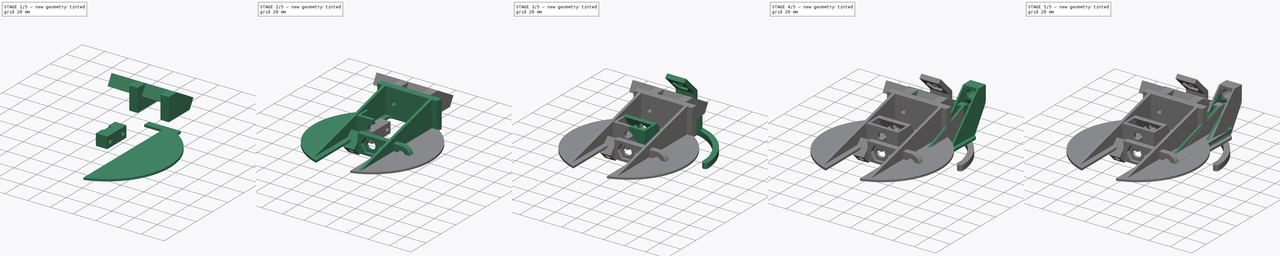
[diagram: build sequence overview — one tinted view per stage of 5, left to right]
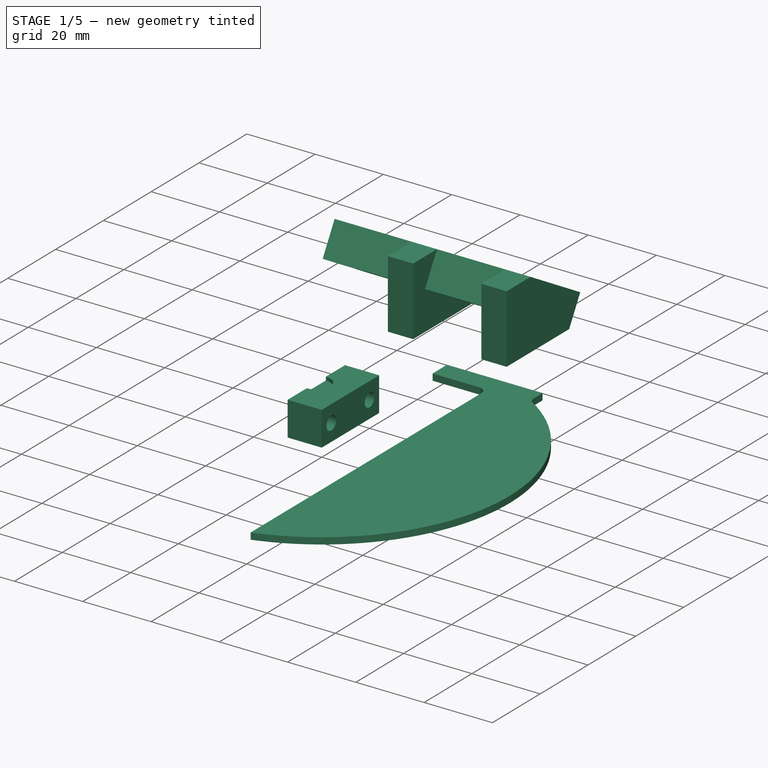
[diagram: stage 1 of 5 — iso view after this stage's code; geometry added in this stage tinted green]
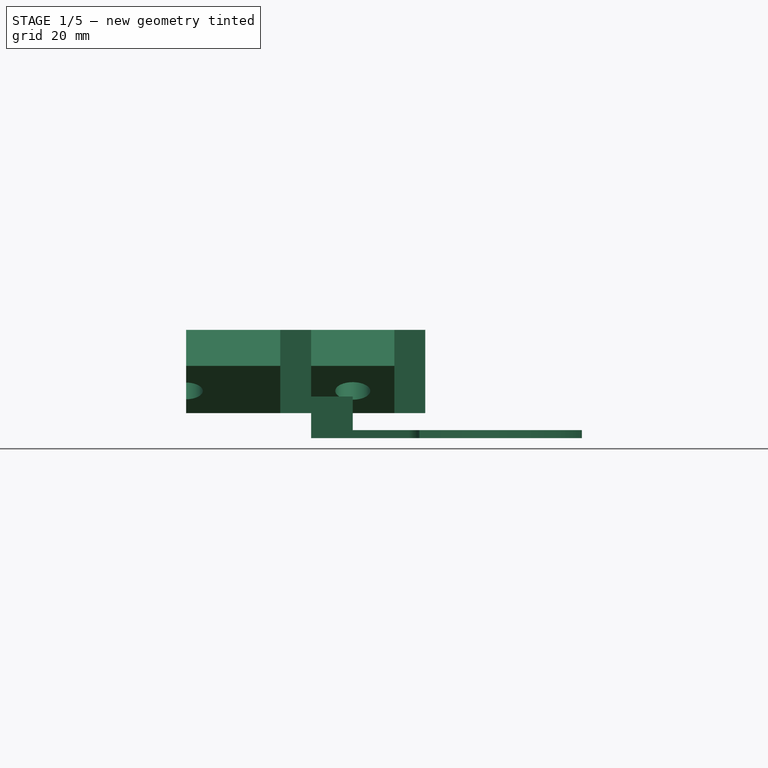
[diagram: stage 1 of 5 — front view after this stage's code; geometry added in this stage tinted green]
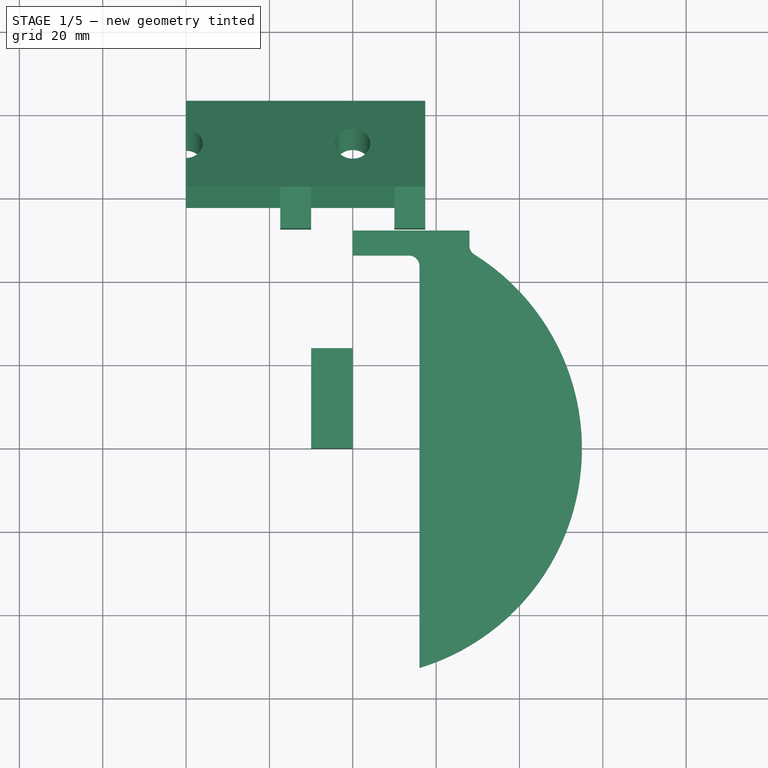
[diagram: stage 1 of 5 — top view after this stage's code; geometry added in this stage tinted green]
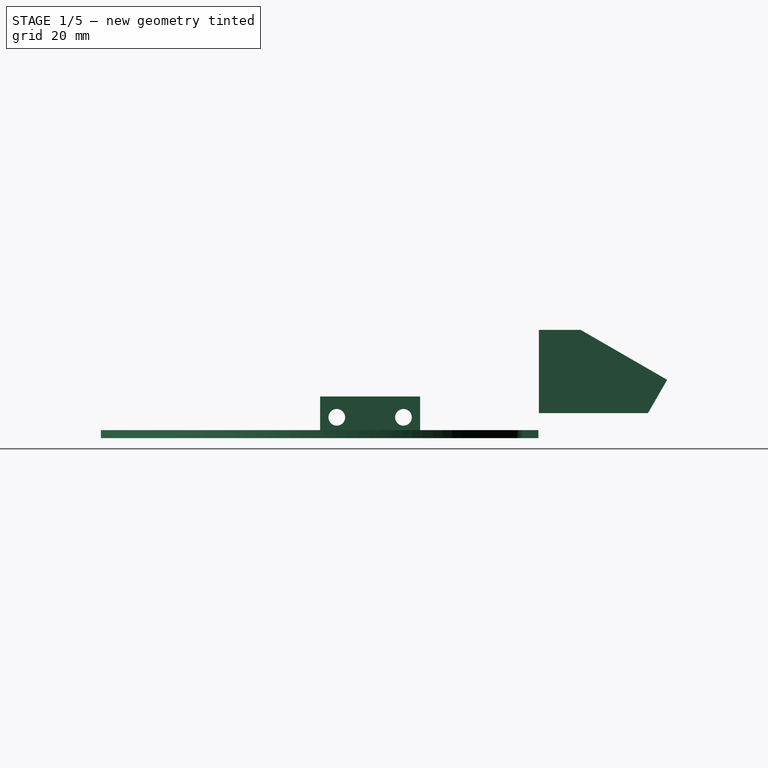
[diagram: stage 1 of 5 — right view after this stage's code; geometry added in this stage tinted green]
FCSTD DOCUMENT  (FreeCAD 0.19R24291 (Git))
Label: Ласты
License: All rights reserved
LicenseURL: http://en.wikipedia.org/wiki/All_rights_reserved
objects: Sketcher::SketchObject×51, PartDesign::Pad×24, PartDesign::Pocket×17, PartDesign::Mirrored×14, PartDesign::Body×10, PartDesign::Plane×7, PartDesign::Line×3, App::Part×2, PartDesign::ShapeBinder×1, PartDesign::AdditivePipe×1, PartDesign::AdditiveBox×1
note: 172 computed .brp shape members not serialized (recipe doc carries the construction recipe); baked Part::Feature solids carry a one-line shape summary decoded from their .brp

FEATURE [Sketcher::SketchObject] Sketch037
  FullyConstrained = true
  MapMode = 5
  Support = -> [XY_Plane008]
FEATURE [PartDesign::Body] Body005
  Group = -> [Sketch031,Pad015,Sketch032,Pad016,Sketch033,Sketch034,Pad017,Sketch035,Pocket009,Sketch036,Pocket010,Mirrored008,Sketch037]
  Origin = -> Origin008
  Tip = -> Mirrored008
FEATURE [App::Part] Part001
  Group = -> [Mirrored003Body,Body002,Body003,Body004,Body005,Body]
  Origin = -> Origin003
FEATURE [Sketcher::SketchObject] Sketch038
  FullyConstrained = true
  MapMode = 5
  Support = -> [XY_Plane010]
  sketch-geometry (8):
    g0: ArcOfCircle CenterX=0 CenterY=0 CenterZ=0 NormalX=0 NormalY=0 NormalZ=1 AngleXU=0 Radius=55 StartAngle=5.00757 EndAngle=7.29487
    g1: LineSegment StartX=16 StartY=43.8787 StartZ=0 EndX=16 EndY=-52.6213 EndZ=0
    g2: ArcOfCircle CenterX=13.5 CenterY=43.8787 CenterZ=0 NormalX=0 NormalY=0 NormalZ=1 AngleXU=0 Radius=2.5 StartAngle=6.28319 EndAngle=7.85398
    g3: LineSegment StartX=13.5 StartY=46.3787 StartZ=0 EndX=0 EndY=46.3787 EndZ=0
    g4: LineSegment StartX=0 StartY=46.3787 StartZ=0 EndX=0 EndY=52.3787 EndZ=0
    g5: LineSegment StartX=0 StartY=52.3787 StartZ=0 EndX=28 EndY=52.3787 EndZ=0
    g6: ArcOfCircle CenterX=30.5 CenterY=48.7442 CenterZ=0 NormalX=0 NormalY=0 NormalZ=1 AngleXU=0 Radius=2.5 StartAngle=3.14159 EndAngle=4.15327
    g7: LineSegment StartX=28 StartY=52.3787 StartZ=0 EndX=28 EndY=48.7442 EndZ=0
  constraints (26):
    c: Coincident(g0,g-1)
    c: Vertical(g1)
    c: Diameter(g0) = 110
    c: Distance(g0,g1) = 16
    c: Coincident(g2,g1)
    c: Coincident(g3,g2)
    c: PointOnObject(g3,g-2)
    c: Horizontal(g3)
    c: Coincident(g4,g3)
    c: PointOnObject(g4,g-2)
    c: Coincident(g5,g4)
    c: Horizontal(g5)
    c: Tangent(g3,g2)
    c: Tangent(g2,g1)
    c: Diameter(g2) = 5
    c: Coincident(g6,g0)
    c: Coincident(g7,g6)
    c: Vertical(g7)
    c: Tangent(g7,g6)
    c: Tangent(g6,g0)
    c: Distance(g6,g-2) = 28
    c: Diameter(g6) = 5
    c: Coincident(g0,g1)
    c: Distance(g4) = 6
    c: DistanceY(g0,g4) = 105
    c: Coincident(g7,g5)
FEATURE [PartDesign::Pad] Pad018
  Direction = (1,1,1)
  Length = 1.92
  Length2 = 100
  Profile = -> Sketch038
  Type = 0
FEATURE [PartDesign::Body] Body006
  Group = -> [Sketch038,Pad018,DatumPlane003,Sketch042,Pad020,DatumPlane004,Sketch043,Pad021,Mirrored011]
  Origin = -> Origin010
  Tip = -> Mirrored011
FEATURE [Sketcher::SketchObject] Sketch044
  AttachmentOffset = pos=(0,0,-10) rot=(0,0,1;0rad)
  FullyConstrained = true
  MapMode = 5
  Placement = pos=(-10,2.2e-15,-2.2e-15) rot=(0.57735,0.57735,0.57735;2.0944rad)
  Support = -> [YZ_Plane012]
  sketch-geometry (4):
    g0: LineSegment StartX=52.5 StartY=26 StartZ=0 EndX=62.5 EndY=26 EndZ=0
    g1: LineSegment StartX=62.5 StartY=26 StartZ=0 EndX=107.533 EndY=-3.6e-15 EndZ=0
    g2: LineSegment StartX=107.533 StartY=-3.6e-15 StartZ=0 EndX=52.5 EndY=-3.6e-15 EndZ=0
    g3: LineSegment StartX=52.5 StartY=-3.6e-15 StartZ=0 EndX=52.5 EndY=26 EndZ=0
  constraints (12):
    c: Horizontal(g0)
    c: Coincident(g0,g1)
    c: Coincident(g1,g2)
    c: Horizontal(g2)
    c: Angle(g1,g2) = 0.523599
    c: Coincident(g3,g2)
    c: Coincident(g3,g0)
    c: Vertical(g3)
    c: Distance(g3) = 26
    c: PointOnObject(g2,g-1)
    c: Distance(g0) = 10
    c: Distance(g2,g-1) = 52.5
FEATURE [PartDesign::Pad] Pad022
  Direction = (1,1,1)
  Length = 7.4
  Length2 = 100
  Placement = pos=(0,0,0) rot=(0.57735,0.57735,0.57735;2.0944rad)
  Profile = -> Sketch044
  Reversed = true
  Type = 0
FEATURE [Sketcher::SketchObject] Sketch045
  ExternalGeometry = -> [Pad022]
  FullyConstrained = true
  MapMode = 5
  Placement = pos=(-6.2e-15,26.8833,46.5633) rot=(-0.250563,-0.250563,-0.935113;1.63783rad)
  Support = -> [Pad022]
  sketch-geometry (17):
    g0: ArcOfCircle CenterX=-53.1266 CenterY=0 CenterZ=0 NormalX=0 NormalY=0 NormalZ=1 AngleXU=0 Radius=12 StartAngle=1e-16 EndAngle=3.14159
    g1: LineSegment StartX=-65.1266 StartY=0 StartZ=0 EndX=-65.1266 EndY=-40 EndZ=0
    g2: LineSegment StartX=-41.1266 StartY=1.5e-15 StartZ=0 EndX=-41.1266 EndY=-40 EndZ=0
    g3: LineSegment StartX=-46.6266 StartY=3.75278 StartZ=0 EndX=-53.1266 EndY=7.50555 EndZ=0
    g4: LineSegment StartX=-53.1266 StartY=7.50555 StartZ=0 EndX=-59.6266 EndY=3.75278 EndZ=0
    g5: LineSegment StartX=-59.6266 StartY=3.75278 StartZ=0 EndX=-59.6266 EndY=-3.75278 EndZ=0
    g6: LineSegment StartX=-59.6266 StartY=-3.75278 StartZ=0 EndX=-53.1266 EndY=-7.50555 EndZ=0
    g7: LineSegment StartX=-53.1266 StartY=-7.50555 StartZ=0 EndX=-46.6266 EndY=-3.75278 EndZ=0
    g8: LineSegment StartX=-46.6266 StartY=-3.75278 StartZ=0 EndX=-46.6266 EndY=3.75278 EndZ=0
    g9: Circle CenterX=-53.1266 CenterY=0 CenterZ=0 NormalX=0 NormalY=0 NormalZ=1 AngleXU=0 Radius=7.50555
    g10: ArcOfCircle CenterX=-53.1266 CenterY=-40 CenterZ=0 NormalX=0 NormalY=0 NormalZ=1 AngleXU=0 Radius=4 StartAngle=-1.8e-15 EndAngle=3.14159
    g11: LineSegment StartX=-41.1266 StartY=1.5e-15 StartZ=0 EndX=-41.1266 EndY=17.4 EndZ=0
    g12: LineSegment StartX=-41.1266 StartY=17.4 StartZ=0 EndX=-65.1266 EndY=17.4 EndZ=0
    g13: LineSegment StartX=-65.1266 StartY=17.4 StartZ=0 EndX=-65.1266 EndY=0 EndZ=0
    g14: Circle CenterX=-53.1266 CenterY=0 CenterZ=0 NormalX=0 NormalY=0 NormalZ=1 AngleXU=0 Radius=4.2
    g15: LineSegment StartX=-41.1266 StartY=-40 StartZ=0 EndX=-49.1266 EndY=-40 EndZ=0
    g16: LineSegment StartX=-65.1266 StartY=-40 StartZ=0 EndX=-57.1266 EndY=-40 EndZ=0
  constraints (44):
    c: Tangent(g0,g2) = 1.5708
    c: Tangent(g0,g1) = -1.5708
    c: Coincident(g1,g16) = -1.5708
    c: Coincident(g2,g15) = 1.5708
    c: Vertical(g1)
    c: PointOnObject(g0,g-1)
    c: Coincident(g3,g4)
    c: Coincident(g4,g5)
    c: Coincident(g5,g6)
    c: Coincident(g6,g7)
    c: Coincident(g7,g8)
    c: Coincident(g8,g3)
    c: Equal(g3, g4-g8) x5
    c: PointOnObject(g3,g9)
    c: PointOnObject(g4,g9)
    c: PointOnObject(g5,g9)
    c: PointOnObject(g6,g9)
    c: PointOnObject(g7,g9)
    c: PointOnObject(g8,g9)
    c: Coincident(g9,g0)
    c: Vertical(g8)
    c: Distance(g5,g7) = 13
    c: Diameter(g0) = 24
    c: Diameter(g10) = 8
    c: Coincident(g11,g12)
    c: Coincident(g12,g13)
    c: Horizontal(g12)
    c: Vertical(g11)
    c: Vertical(g13)
    c: Coincident(g11,g2)
    c: Coincident(g14,g0)
    c: Diameter(g14) = 8.4
    c: Distance(g11) = 17.4
    c: Horizontal(g15)
    c: Horizontal(g16)
    c: Coincident(g10,g15)
    c: Coincident(g10,g16)
    c: Coincident(g13,g1)
    c: Equal(g15,g16)
    c: Perpendicular(g10,g15)
    c: Perpendicular(g10,g16)
    c: Distance(g10,g14) = 40
    c: Vertical(g2)
    c: PointOnObject(g-3,g2)
FEATURE [PartDesign::Pad] Pad023
  BaseFeature = -> Pad022
  Direction = (1,1,1)
  Length = 10
  Length2 = 100
  Placement = pos=(0,0,0) rot=(0.57735,0.57735,0.57735;2.0944rad)
  Profile = -> Sketch045
  Reversed = true
  Type = 0
FEATURE [Sketcher::SketchObject] Sketch047
  FullyConstrained = true
  MapMode = 5
  Support = -> [XY_Plane013]
  sketch-geometry (4):
    g0: LineSegment StartX=0 StartY=0 StartZ=0 EndX=-10 EndY=0 EndZ=0
    g1: LineSegment StartX=-10 StartY=24 StartZ=0 EndX=0 EndY=24 EndZ=0
    g2: LineSegment StartX=0 StartY=24 StartZ=0 EndX=0 EndY=0 EndZ=0
    g3: LineSegment StartX=-10 StartY=0 StartZ=0 EndX=-10 EndY=24 EndZ=0
  constraints (11):
    c: Coincident(g3,g1)
    c: Coincident(g1,g2)
    c: Coincident(g2,g0)
    c: Horizontal(g0)
    c: Horizontal(g1)
    c: Vertical(g2)
    c: Coincident(g0,g-1)
    c: Distance(g0) = 10
    c: Distance(g2) = 24
    c: Coincident(g3,g0)
    c: Vertical(g3)
FEATURE [PartDesign::Pad] Pad024
  Direction = (1,1,1)
  Length = 10
  Length2 = 100
  Profile = -> Sketch047
  Type = 0
FEATURE [Sketcher::SketchObject] Sketch048
  ExternalGeometry = -> [Pad024]
  FullyConstrained = false
  MapMode = 5
  Placement = pos=(0,0,0) rot=(0.57735,0.57735,0.57735;2.0944rad)
  Support = -> [Pad024]
  sketch-geometry (3):
    g0: Circle CenterX=-17 CenterY=3 CenterZ=0 NormalX=0 NormalY=0 NormalZ=1 AngleXU=0 Radius=2
    g1: LineSegment StartX=-20 StartY=6 StartZ=0 EndX=-17 EndY=3 EndZ=0
    g2: LineSegment StartX=-17 StartY=3 StartZ=0 EndX=-14 EndY=-1.3e-15 EndZ=0
  constraints (5):
    c: Diameter(g0) = 4
    c: Coincident(g1,g0)
    c: Coincident(g2,g0)
    c: Parallel(g2,g1)
    c: Equal(g2,g1)
FEATURE [Sketcher::SketchObject] Sketch050
  ExternalGeometry = -> [Pad024]
  FullyConstrained = true
  MapMode = 5
  Placement = pos=(-10,0,0) rot=(0.57735,-0.57735,-0.57735;2.0944rad)
  Support = -> [Pad024]
  sketch-geometry (6):
    g0: LineSegment StartX=-24 StartY=10 StartZ=0 EndX=-20 EndY=5 EndZ=0
    g1: LineSegment StartX=-20 StartY=5 StartZ=0 EndX=-24 EndY=0 EndZ=0
    g2: LineSegment StartX=0 StartY=10 StartZ=0 EndX=-4 EndY=5 EndZ=0
    g3: LineSegment StartX=-4 StartY=5 StartZ=0 EndX=0 EndY=0 EndZ=0
    g4: Circle CenterX=-20 CenterY=5 CenterZ=0 NormalX=0 NormalY=0 NormalZ=1 AngleXU=0 Radius=2
    g5: Circle CenterX=-4 CenterY=5 CenterZ=0 NormalX=0 NormalY=0 NormalZ=1 AngleXU=0 Radius=2
  constraints (14):
    c: Coincident(g0,g-4)
    c: Coincident(g1,g0)
    c: Coincident(g1,g-4)
    c: Coincident(g2,g-3)
    c: Coincident(g3,g2)
    c: Coincident(g3,g-1)
    c: Equal(g3,g2)
    c: Equal(g2,g1)
    c: Equal(g1,g0)
    c: Distance(g0,g2) = 16
    c: Coincident(g4,g0)
    c: Coincident(g5,g2)
    c: Equal(g5,g4)
    c: Diameter(g5) = 4
FEATURE [PartDesign::Pocket] Pocket017
  BaseFeature = -> Pad024
  Length = 5
  Length2 = 100
  Profile = -> Sketch050
  Type = 1
FEATURE [PartDesign::Plane] DatumPlane007
  Length = 60
  MapMode = 13
  Placement = pos=(-6.66667,7.33333,5) rot=(0,0,1;0rad)
  ResizeMode = 0
  Support = -> [Pocket017]
  Width = 60
FEATURE [Sketcher::SketchObject] Sketch051
  ExternalGeometry = -> [Pocket017]
  FullyConstrained = true
  MapMode = 5
  Placement = pos=(0,0,10) rot=(0,0,1;0rad)
  Support = -> [Pocket017]
  sketch-geometry (4):
    g0: ArcOfCircle CenterX=-10 CenterY=12 CenterZ=0 NormalX=0 NormalY=0 NormalZ=1 AngleXU=0 Radius=4 StartAngle=4.71239 EndAngle=7.85398
    g1: LineSegment StartX=-10 StartY=16 StartZ=0 EndX=-10 EndY=8 EndZ=0
    g2: LineSegment StartX=-10 StartY=16 StartZ=0 EndX=-10 EndY=24 EndZ=0
    g3: LineSegment StartX=-10 StartY=8 StartZ=0 EndX=-10 EndY=0 EndZ=0
  constraints (11):
    c: PointOnObject(g0,g-3)
    c: PointOnObject(g0,g-3)
    c: PointOnObject(g0,g-3)
    c: Coincident(g1,g0)
    c: Coincident(g1,g0)
    c: Coincident(g2,g0)
    c: Coincident(g2,g-3)
    c: Coincident(g3,g0)
    c: Coincident(g3,g-3)
    c: Equal(g3,g2)
    c: Diameter(g0) = 8
FEATURE [PartDesign::Pocket] Pocket018
  BaseFeature = -> Pocket017
  Length = 1
  Length2 = 100
  Profile = -> Sketch051
  Type = 0
FEATURE [PartDesign::Mirrored] Mirrored016
  BaseFeature = -> Pocket018
  MirrorPlane = -> DatumPlane007
  Originals = -> [Pocket018]
FEATURE [PartDesign::Body] Body009
  Group = -> [Sketch047,Pad024,Sketch048,Sketch050,Pocket017,DatumPlane007,Sketch051,Pocket018,Mirrored016]
  Origin = -> Origin013
  Tip = -> Mirrored016
FEATURE [PartDesign::Mirrored] Mirrored012
  BaseFeature = -> Pad023
  MirrorPlane = -> YZ_Plane012
  Originals = -> [Pad022]
  Placement = pos=(0,0,0) rot=(0.57735,0.57735,0.57735;2.0944rad)
FEATURE [Sketcher::SketchObject] Sketch049
  ExternalGeometry = -> [Mirrored012]
  FullyConstrained = false
  MapMode = 5
  Placement = pos=(-17.4,1.5e-14,-9.8e-15) rot=(0.57735,0.57735,-0.57735;4.18879rad)
  sketch-geometry (5):
    g0: LineSegment StartX=83.2846 StartY=-14 StartZ=0 EndX=78.6658 EndY=-6 EndZ=0
    g1: LineSegment StartX=78.6658 StartY=-6 StartZ=0 EndX=50.5237 EndY=-6 EndZ=0
    g2: LineSegment StartX=50.5237 StartY=-6 StartZ=0 EndX=50.5237 EndY=0 EndZ=0
    g3: LineSegment StartX=50.5237 StartY=0 StartZ=0 EndX=118.589 EndY=0 EndZ=0
    g4: LineSegment StartX=118.589 StartY=0 StartZ=0 EndX=83.2846 EndY=-14 EndZ=0
  constraints (12):
    c: Distance(g0,g-1) = 6
    c: Coincident(g1,g0)
    c: Horizontal(g1)
    c: Coincident(g2,g1)
    c: PointOnObject(g2,g-1)
    c: Vertical(g2)
    c: Coincident(g3,g2)
    c: PointOnObject(g3,g-1)
    c: Coincident(g4,g3)
    c: Coincident(g4,g0)
    c: Coincident(g0,g-3)
    c: PointOnObject(g-3,g0)
FEATURE [PartDesign::Pocket] Pocket015
  BaseFeature = -> Mirrored012
  Length = 5
  Length2 = 100
  Midplane = true
  Placement = pos=(0,0,0) rot=(0.57735,0.57735,0.57735;2.0944rad)
  Profile = -> Sketch049
  Type = 1
FEATURE [PartDesign::Line] DatumLine001
  AttacherType = Attacher::AttachEngineLine
  Length = 20
  MapMode = 42
  Placement = pos=(0,70.3923,15.6699) rot=(0.57735,0.57735,0.57735;2.0944rad)
  ResizeMode = 0
  Support = -> [Pocket015]
FEATURE [PartDesign::Line] DatumLine002
  AttacherType = Attacher::AttachEngineLine
  Length = 20
  MapMode = 19
  Placement = pos=(-40,72.8923,20) rot=(-0.250563,-0.250563,-0.935113;1.63783rad)
  ResizeMode = 0
  Support = -> [Pocket015]
FEATURE [PartDesign::Plane] DatumPlane005
  Length = 80.9877
  MapMode = 13
  Placement = pos=(-26.6667,72.2256,18.8453) rot=(0,0.866025,0.5;3.14159rad)
  ResizeMode = 0
  Support = -> [DatumLine002,DatumLine001]
  Width = 114.297
FEATURE [Sketcher::SketchObject] Sketch046
  ExternalGeometry = -> [Pocket015]
  FullyConstrained = false
  MapMode = 5
  Placement = pos=(-40,1.44e-14,-2.61e-14) rot=(0.57735,0.57735,-0.57735;4.18879rad)
  Support = -> [Pocket015]
  sketch-geometry (3):
    g0: Circle CenterX=56.9152 CenterY=15.4123 CenterZ=0 NormalX=0 NormalY=0 NormalZ=1 AngleXU=0 Radius=1.5
    g1: LineSegment StartX=56.9152 StartY=15.4123 StartZ=0 EndX=74.3477 EndY=-6.3816 EndZ=0
    g2: LineSegment StartX=63.698 StartY=-11.6591 StartZ=0 EndX=56.9152 EndY=15.4123 EndZ=0
  constraints (4):
    c: Diameter(g0) = 3
    c: Coincident(g1,g0)
    c: Coincident(g2,g0)
    c: Equal(g2,g1)
FEATURE [PartDesign::Pocket] Pocket016
  BaseFeature = -> Pocket015
  Length = 10
  Length2 = 100
  Placement = pos=(0,0,0) rot=(0.57735,0.57735,0.57735;2.0944rad)
  Profile = -> Sketch046
  Type = 0
FEATURE [PartDesign::Mirrored] Mirrored015
  BaseFeature = -> Pocket016
  MirrorPlane = -> DatumPlane005
  Originals = -> [Pocket016]
  Placement = pos=(0,0,0) rot=(0.57735,0.57735,0.57735;2.0944rad)
FEATURE [PartDesign::Body] Body008
  Group = -> [Sketch044,Pad022,Sketch045,Pad023,Mirrored012,Sketch046,DatumLine001,DatumLine002,DatumPlane005,Sketch049,Pocket015,Pocket016,Mirrored015]
  Origin = -> Origin012
  Tip = -> Mirrored015
FEATURE [App::Part] Part
  Group = -> [Body006,Body007,Body008,Body009]
  Origin = -> Origin009
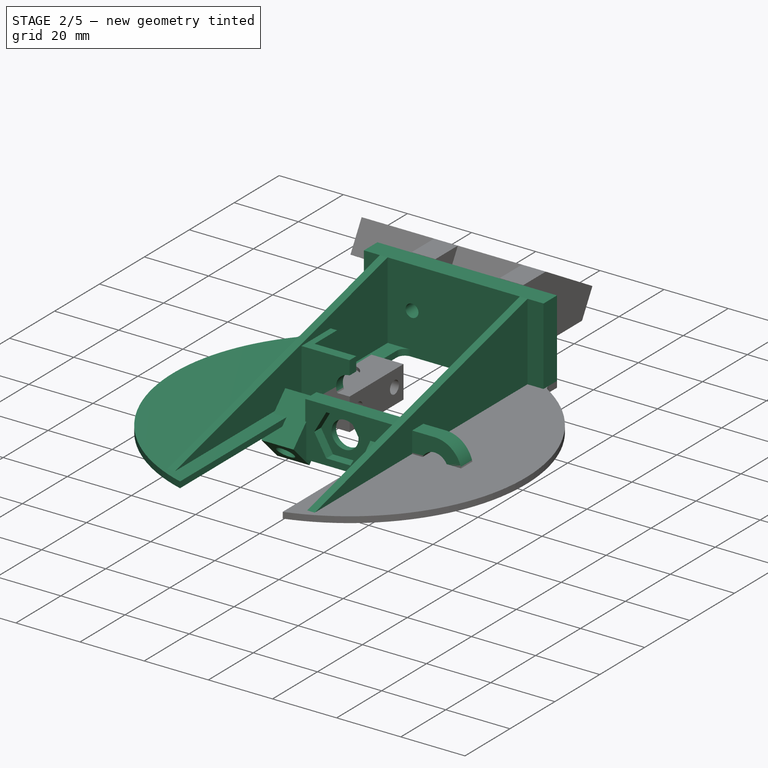
[diagram: stage 2 of 5 — iso view after this stage's code; geometry added in this stage tinted green]
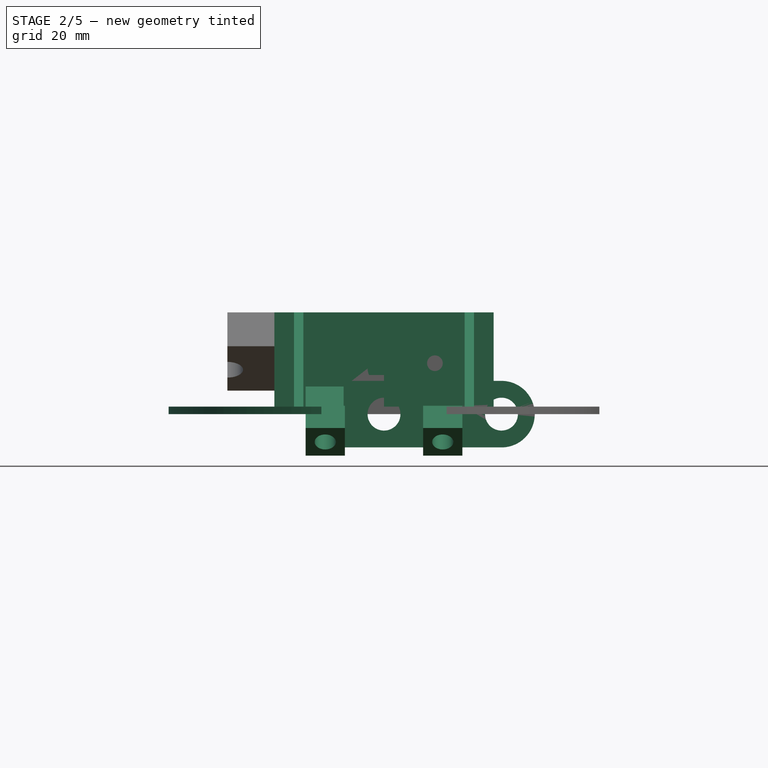
[diagram: stage 2 of 5 — front view after this stage's code; geometry added in this stage tinted green]
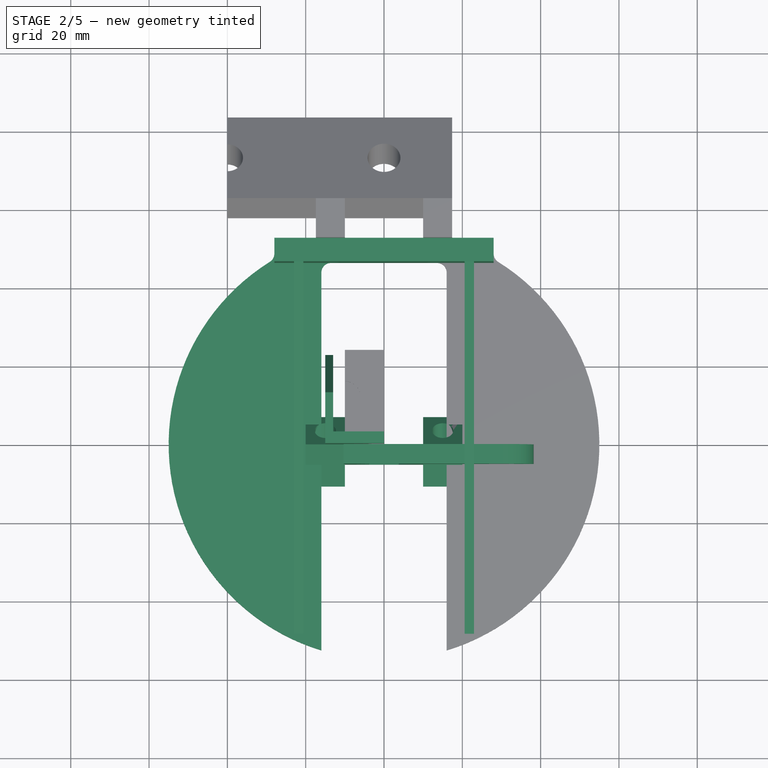
[diagram: stage 2 of 5 — top view after this stage's code; geometry added in this stage tinted green]
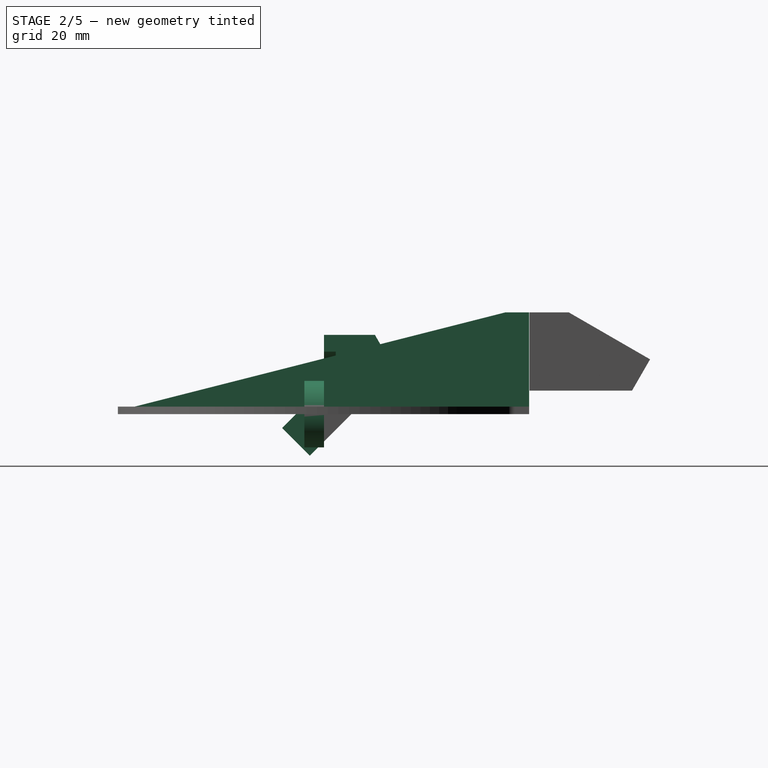
[diagram: stage 2 of 5 — right view after this stage's code; geometry added in this stage tinted green]
FEATURE [PartDesign::Body] Body004
  Group = -> [Sketch026,Pad014,Sketch027,Pocket006,Sketch028,Sketch029,Pocket007,Sketch030,Pocket008]
  Origin = -> Origin007
  Tip = -> Pocket008
FEATURE [Sketcher::SketchObject] Sketch031
  FullyConstrained = false
  MapMode = 5
  Placement = pos=(0,0,0) rot=(0,0.707107,0.707107;3.14159rad)
  Support = -> [XZ_Plane008]
  sketch-geometry (21):
    g0: LineSegment StartX=-15 StartY=3.25652 StartZ=0 EndX=15 EndY=3.25652 EndZ=0
    g1: LineSegment StartX=15 StartY=3.25652 StartZ=0 EndX=15 EndY=20.2565 EndZ=0
    g2: LineSegment StartX=15 StartY=20.2565 StartZ=0 EndX=-15 EndY=20.2565 EndZ=0
    g3: LineSegment StartX=-15 StartY=20.2565 StartZ=0 EndX=-15 EndY=3.25652 EndZ=0
    g4: LineSegment StartX=-15 StartY=20.2565 StartZ=0 EndX=0 EndY=11.7565 EndZ=0
    g5: LineSegment StartX=0 StartY=11.7565 StartZ=0 EndX=15 EndY=3.25652 EndZ=0
    g6: LineSegment StartX=15 StartY=20.2565 StartZ=0 EndX=0 EndY=11.7565 EndZ=0
    g7: LineSegment StartX=0 StartY=11.7565 StartZ=0 EndX=-15 EndY=3.25652 EndZ=0
    g8: Circle CenterX=0 CenterY=11.7565 CenterZ=0 NormalX=0 NormalY=0 NormalZ=1 AngleXU=0 Radius=4.2
    g9: LineSegment StartX=3.75278 StartY=18.2565 StartZ=0 EndX=-3.75278 EndY=18.2565 EndZ=0
    g10: LineSegment StartX=-3.75278 StartY=18.2565 StartZ=0 EndX=-7.50555 EndY=11.7565 EndZ=0
    g11: LineSegment StartX=-7.50555 StartY=11.7565 StartZ=0 EndX=-3.75278 EndY=5.25652 EndZ=0
    g12: LineSegment StartX=-3.75278 StartY=5.25652 StartZ=0 EndX=3.75278 EndY=5.25652 EndZ=0
    g13: LineSegment StartX=3.75278 StartY=5.25652 StartZ=0 EndX=7.50555 EndY=11.7565 EndZ=0
    g14: LineSegment StartX=7.50555 StartY=11.7565 StartZ=0 EndX=3.75278 EndY=18.2565 EndZ=0
    g15: Circle CenterX=0 CenterY=11.7565 CenterZ=0 NormalX=0 NormalY=0 NormalZ=1 AngleXU=0 Radius=7.50555
    g16: ArcOfCircle CenterX=0 CenterY=11.7565 CenterZ=0 NormalX=0 NormalY=0 NormalZ=1 AngleXU=0 Radius=4.2 StartAngle=4.71239 EndAngle=7.85398
    g17: LineSegment StartX=15 StartY=20.2565 StartZ=0 EndX=0 EndY=20.2565 EndZ=0
    g18: LineSegment StartX=0 StartY=20.2565 StartZ=0 EndX=0 EndY=15.9565 EndZ=0
    g19: LineSegment StartX=0 StartY=7.55652 StartZ=0 EndX=0 EndY=3.25652 EndZ=0
    g20: LineSegment StartX=0 StartY=3.25652 StartZ=0 EndX=15 EndY=3.25652 EndZ=0
  constraints (52):
    c: Coincident(g0,g1)
    c: Coincident(g1,g2)
    c: Coincident(g2,g3)
    c: Coincident(g3,g0)
    c: Horizontal(g0)
    c: Horizontal(g2)
    c: Vertical(g1)
    c: Vertical(g3)
    c: Coincident(g4,g2)
    c: PointOnObject(g4,g-2)
    c: Coincident(g5,g4)
    c: Coincident(g5,g0)
    c: Coincident(g6,g1)
    c: Coincident(g6,g4)
    c: Coincident(g7,g4)
    c: Coincident(g7,g0)
    c: Equal(g5,g6)
    c: Equal(g6,g4)
    c: Distance(g2) = 30
    c: Coincident(g8,g4)
    c: Coincident(g9,g10)
    c: Coincident(g10,g11)
    c: Coincident(g11,g12)
    c: Coincident(g12,g13)
    c: Coincident(g13,g14)
    c: Coincident(g14,g9)
    c: Equal(g9, g10-g14) x5
    c: PointOnObject(g9,g15)
    c: PointOnObject(g10,g15)
    c: PointOnObject(g11,g15)
    c: PointOnObject(g12,g15)
    c: PointOnObject(g13,g15)
    c: PointOnObject(g14,g15)
    c: Coincident(g15,g8)
    c: Horizontal(g9)
    c: Diameter(g8) = 8.4
    c: Distance(g9,g12) = 13
    c: Distance(g1) = 17
    c: Coincident(g16,g4)
    c: PointOnObject(g16,g-2)
    c: PointOnObject(g16,g-2)
    c: Equal(g8,g16)
    c: Coincident(g17,g1)
    c: PointOnObject(g17,g-2)
    c: Horizontal(g17)
    c: Coincident(g18,g17)
    c: Coincident(g18,g16)
    c: Coincident(g19,g16)
    c: PointOnObject(g19,g0)
    c: Vertical(g19)
    c: Coincident(g20,g19)
    c: Coincident(g20,g1)
FEATURE [PartDesign::Pad] Pad015
  Direction = (1,1,1)
  Length = 3
  Length2 = 100
  Placement = pos=(0,0,0) rot=(1,0,0;1.5708rad)
  Profile = -> Sketch031
  Type = 0
FEATURE [Sketcher::SketchObject] Sketch032
  ExternalGeometry = -> [Pad015]
  FullyConstrained = true
  MapMode = 5
  Placement = pos=(-15,0,0) rot=(0.707107,0,-0.707107;3.14159rad)
  Support = -> [Pad015]
  sketch-geometry (4):
    g0: LineSegment StartX=-3.25652 StartY=-3 StartZ=0 EndX=-3.25652 EndY=-22.815 EndZ=0
    g1: LineSegment StartX=-3.25652 StartY=-22.815 StartZ=0 EndX=-20.2565 EndY=-13 EndZ=0
    g2: LineSegment StartX=-20.2565 StartY=-13 StartZ=0 EndX=-20.2565 EndY=-3 EndZ=0
    g3: LineSegment StartX=-20.2565 StartY=-3 StartZ=0 EndX=-3.25652 EndY=-3 EndZ=0
  constraints (10):
    c: Coincident(g-3,g0)
    c: Vertical(g0)
    c: Coincident(g0,g1)
    c: Coincident(g1,g2)
    c: Coincident(g2,g-3)
    c: Vertical(g2)
    c: Angle(g0,g1) = 1.0472
    c: Distance(g2) = 10
    c: Coincident(g3,g2)
    c: Coincident(g3,g0)
FEATURE [PartDesign::Pad] Pad016
  BaseFeature = -> Pad015
  Direction = (1,1,1)
  Length = 2
  Length2 = 100
  Placement = pos=(0,0,0) rot=(1,0,0;1.5708rad)
  Profile = -> Sketch032
  Reversed = true
  Type = 0
FEATURE [Sketcher::SketchObject] Sketch039
  FullyConstrained = false
  MapMode = 5
  Placement = pos=(0,0,0) rot=(1,0,0;1.5708rad)
  Support = -> [XZ_Plane011]
  sketch-geometry (9):
    g0: Circle CenterX=0 CenterY=0 CenterZ=0 NormalX=0 NormalY=0 NormalZ=1 AngleXU=0 Radius=4.2
    g1: Circle CenterX=30 CenterY=0 CenterZ=0 NormalX=0 NormalY=0 NormalZ=1 AngleXU=0 Radius=4.2
    g2: ArcOfCircle CenterX=0 CenterY=0 CenterZ=0 NormalX=0 NormalY=0 NormalZ=1 AngleXU=0 Radius=8.5 StartAngle=1.5708 EndAngle=4.71239
    g3: ArcOfCircle CenterX=30 CenterY=0 CenterZ=0 NormalX=0 NormalY=0 NormalZ=1 AngleXU=0 Radius=8.5 StartAngle=4.71239 EndAngle=7.85398
    g4: LineSegment StartX=-1.6e-15 StartY=-8.5 StartZ=0 EndX=30 EndY=-8.5 EndZ=0
    g5: LineSegment StartX=-1.4e-15 StartY=8.5 StartZ=0 EndX=30 EndY=8.5 EndZ=0
    g6: LineSegment StartX=-1.6e-15 StartY=-8.5 StartZ=0 EndX=-10.3136 EndY=-8.5 EndZ=0
    g7: LineSegment StartX=-10.3136 StartY=-8.5 StartZ=0 EndX=-10.3136 EndY=8.5 EndZ=0
    g8: LineSegment StartX=-10.3136 StartY=8.5 StartZ=0 EndX=-1.8e-15 EndY=8.5 EndZ=0
  constraints (20):
    c: Coincident(g0,g-1)
    c: PointOnObject(g1,g-1)
    c: Equal(g1,g0)
    c: Diameter(g1) = 8.4
    c: Distance(g1,g0) = 30
    c: Tangent(g2,g5) = 1.5708
    c: Tangent(g2,g4) = -1.5708
    c: Tangent(g4,g3) = -1.5708
    c: Tangent(g5,g3) = 1.5708
    c: Horizontal(g4)
    c: Coincident(g2,g0)
    c: Diameter(g2) = 17
    c: Coincident(g3,g1)
    c: Coincident(g6,g7)
    c: Coincident(g7,g8)
    c: Horizontal(g6)
    c: Horizontal(g8)
    c: Vertical(g7)
    c: Coincident(g6,g4)
    c: Coincident(g8,g5)
FEATURE [PartDesign::Pad] Pad019
  Direction = (1,1,1)
  Length = 5
  Length2 = 100
  Placement = pos=(0,0,0) rot=(1,0,0;1.5708rad)
  Profile = -> Sketch039
  Type = 0
FEATURE [PartDesign::AdditiveBox] Box
  AttacherType = Attacher::AttachEngine3D
  AttachmentOffset = pos=(10,0,-12) rot=(1,0,0;0.785398rad)
  BaseFeature = -> Pad019
  Height = 15
  Length = 10
  MapMode = 5
  Placement = pos=(10,7,-7.8e-15) rot=(1,0,0;2.35619rad)
  Width = 10
FEATURE [Sketcher::SketchObject] Sketch040
  ExternalGeometry = -> [Box]
  FullyConstrained = true
  MapMode = 5
  Placement = pos=(10,-5,-6.4e-15) rot=(1,0,0;1.5708rad)
  Support = -> [Box]
  sketch-geometry (7):
    g0: LineSegment StartX=-6.24722 StartY=6.5 StartZ=0 EndX=-13.7528 EndY=6.5 EndZ=0
    g1: LineSegment StartX=-13.7528 StartY=6.5 StartZ=0 EndX=-17.5056 EndY=5.3e-15 EndZ=0
    g2: LineSegment StartX=-17.5056 StartY=5.3e-15 StartZ=0 EndX=-13.7528 EndY=-6.5 EndZ=0
    g3: LineSegment StartX=-13.7528 StartY=-6.5 StartZ=0 EndX=-6.24722 EndY=-6.5 EndZ=0
    g4: LineSegment StartX=-6.24722 StartY=-6.5 StartZ=0 EndX=-2.49445 EndY=-1.8e-15 EndZ=0
    g5: LineSegment StartX=-2.49445 StartY=-1.8e-15 StartZ=0 EndX=-6.24722 EndY=6.5 EndZ=0
    g6: Circle CenterX=-10 CenterY=2.9e-15 CenterZ=0 NormalX=0 NormalY=0 NormalZ=1 AngleXU=0 Radius=7.50555
  constraints (16):
    c: Coincident(g0,g1)
    c: Coincident(g1,g2)
    c: Coincident(g2,g3)
    c: Coincident(g3,g4)
    c: Coincident(g4,g5)
    c: Coincident(g5,g0)
    c: Equal(g0, g1-g5) x5
    c: PointOnObject(g0,g6)
    c: PointOnObject(g1,g6)
    c: PointOnObject(g2,g6)
    c: PointOnObject(g3,g6)
    c: PointOnObject(g4,g6)
    c: PointOnObject(g5,g6)
    c: Horizontal(g0)
    c: Distance(g3,g0) = 13
    c: Coincident(g6,g-3)
FEATURE [PartDesign::Pocket] Pocket011
  BaseFeature = -> Box
  Length = 3
  Length2 = 100
  Placement = pos=(10,7,-7.8e-15) rot=(1,0,0;2.35619rad)
  Profile = -> Sketch040
  Type = 0
FEATURE [Sketcher::SketchObject] Sketch041
  ExternalGeometry = -> [Pocket011]
  FullyConstrained = true
  MapMode = 5
  Placement = pos=(10,7,-7.5e-15) rot=(-1,0,0;0.785398rad)
  Support = -> [Pocket011]
  sketch-geometry (3):
    g0: Circle CenterX=5 CenterY=-4.94975 CenterZ=0 NormalX=0 NormalY=0 NormalZ=1 AngleXU=0 Radius=2.7
    g1: LineSegment StartX=0 StartY=0 StartZ=0 EndX=5 EndY=-4.94975 EndZ=0
    g2: LineSegment StartX=10 StartY=-9.89949 StartZ=0 EndX=5 EndY=-4.94975 EndZ=0
  constraints (7):
    c: Diameter(g0) = 5.4
    c: Coincident(g1,g-1)
    c: Coincident(g1,g0)
    c: Coincident(g2,g-3)
    c: Coincident(g2,g0)
    c: Equal(g2,g1)
    c: Parallel(g2,g1)
FEATURE [PartDesign::Pocket] Pocket012
  BaseFeature = -> Pocket011
  Length = 5
  Length2 = 100
  Placement = pos=(10,7,-7.8e-15) rot=(1,0,0;2.35619rad)
  Profile = -> Sketch041
  Type = 1
FEATURE [PartDesign::Mirrored] Mirrored010
  BaseFeature = -> Pocket012
  MirrorPlane = -> YZ_Plane011
  Originals = -> [Box,Pocket012]
  Placement = pos=(10,7,-7.8e-15) rot=(1,0,0;2.35619rad)
FEATURE [PartDesign::Body] Body007
  Group = -> [Sketch039,Pad019,Sketch040,Box,Pocket011,Sketch041,Pocket012,Mirrored010]
  Origin = -> Origin011
  Placement = pos=(0,59,11) rot=(1,0,0;0.785398rad)
  Tip = -> Mirrored010
FEATURE [PartDesign::Plane] DatumPlane003
  Length = 60
  MapMode = 5
  Placement = pos=(0,52.3787,0) rot=(0,0.707107,0.707107;3.14159rad)
  ResizeMode = 0
  Support = -> [Pad018]
  Width = 60
FEATURE [Sketcher::SketchObject] Sketch042
  FullyConstrained = true
  MapMode = 5
  Placement = pos=(0,52.3787,0) rot=(0,0.707107,0.707107;3.14159rad)
  Support = -> [DatumPlane003]
  sketch-geometry (5):
    g0: LineSegment StartX=0 StartY=0 StartZ=0 EndX=-28 EndY=0 EndZ=0
    g1: LineSegment StartX=-28 StartY=0 StartZ=0 EndX=-28 EndY=26 EndZ=0
    g2: LineSegment StartX=-28 StartY=26 StartZ=0 EndX=0 EndY=26 EndZ=0
    g3: LineSegment StartX=0 StartY=26 StartZ=0 EndX=0 EndY=0 EndZ=0
    g4: Circle CenterX=-13 CenterY=13 CenterZ=0 NormalX=0 NormalY=0 NormalZ=1 AngleXU=0 Radius=2
  constraints (14):
    c: Coincident(g0,g1)
    c: Coincident(g1,g2)
    c: Coincident(g2,g3)
    c: Coincident(g3,g0)
    c: Horizontal(g0)
    c: Horizontal(g2)
    c: Vertical(g1)
    c: Vertical(g3)
    c: Coincident(g0,g-1)
    c: Distance(g0) = 28
    c: Distance(g3) = 26
    c: Distance(g4,g3) = 13
    c: Distance(g4,g-1) = 13
    c: Diameter(g4) = 4
FEATURE [PartDesign::Pad] Pad020
  BaseFeature = -> Pad018
  Direction = (1,1,1)
  Length = 6
  Length2 = 100
  Profile = -> Sketch042
  Reversed = true
  Type = 0
FEATURE [PartDesign::Plane] DatumPlane004
  AttachmentOffset = pos=(0,0,-7) rot=(0,0,1;0rad)
  Length = 60
  MapMode = 5
  Placement = pos=(23,0,0) rot=(0.57735,-0.57735,-0.57735;2.0944rad)
  ResizeMode = 0
  Support = -> [Pad020]
  Width = 60
FEATURE [Sketcher::SketchObject] Sketch043
  ExternalGeometry = -> [Pad020]
  FullyConstrained = false
  MapMode = 5
  Placement = pos=(23,0,0) rot=(0.57735,-0.57735,-0.57735;2.0944rad)
  Support = -> [DatumPlane004]
  sketch-geometry (3):
    g0: LineSegment StartX=-46.3787 StartY=26 StartZ=0 EndX=48.3449 EndY=1.92 EndZ=0
    g1: LineSegment StartX=48.3449 StartY=1.92 StartZ=0 EndX=-46.3787 EndY=1.92 EndZ=0
    g2: LineSegment StartX=-46.3787 StartY=1.92 StartZ=0 EndX=-46.3787 EndY=26 EndZ=0
  constraints (6):
    c: Coincident(g-4,g0)
    c: PointOnObject(g0,g-3)
    c: Coincident(g0,g1)
    c: Coincident(g1,g-4)
    c: Coincident(g1,g2)
    c: Coincident(g2,g0)
FEATURE [PartDesign::Pad] Pad021
  BaseFeature = -> Pad020
  Direction = (1,1,1)
  Length = 2.4
  Length2 = 100
  Profile = -> Sketch043
  Type = 0
FEATURE [PartDesign::Mirrored] Mirrored011
  BaseFeature = -> Pad021
  MirrorPlane = -> Sketch038 [V_Axis]
  Originals = -> [Pad018,Pad020,Pad021]
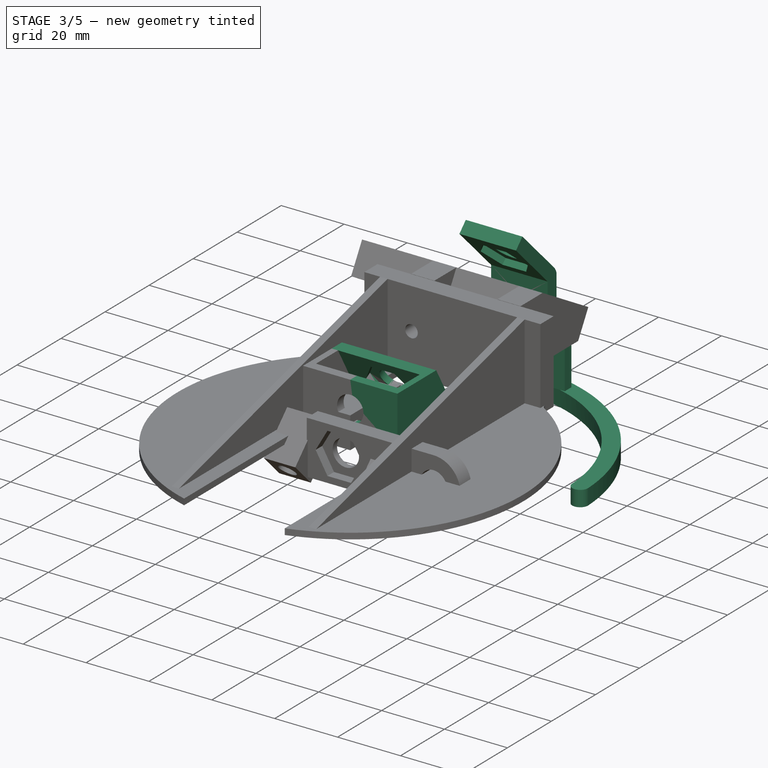
[diagram: stage 3 of 5 — iso view after this stage's code; geometry added in this stage tinted green]
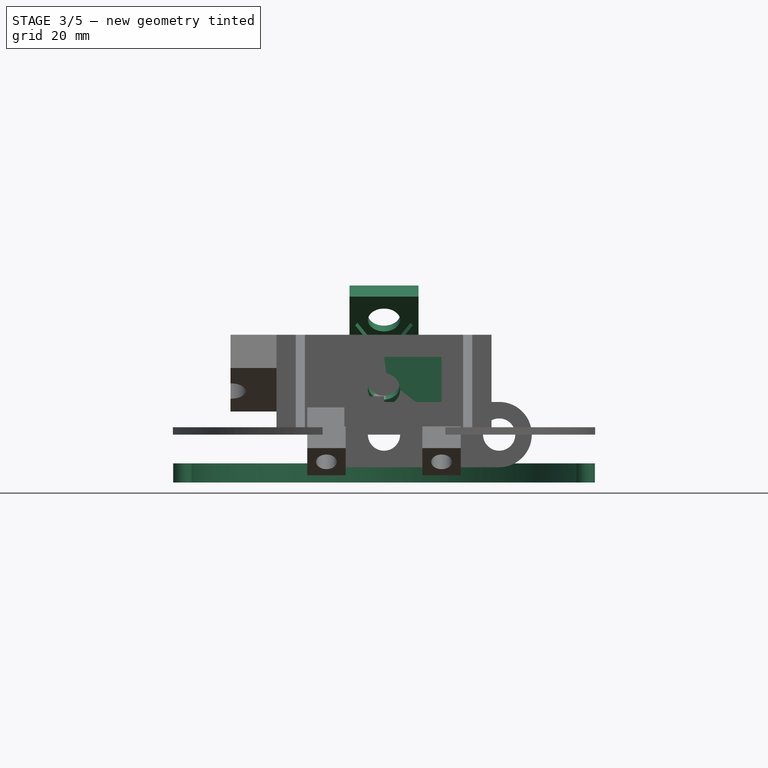
[diagram: stage 3 of 5 — front view after this stage's code; geometry added in this stage tinted green]
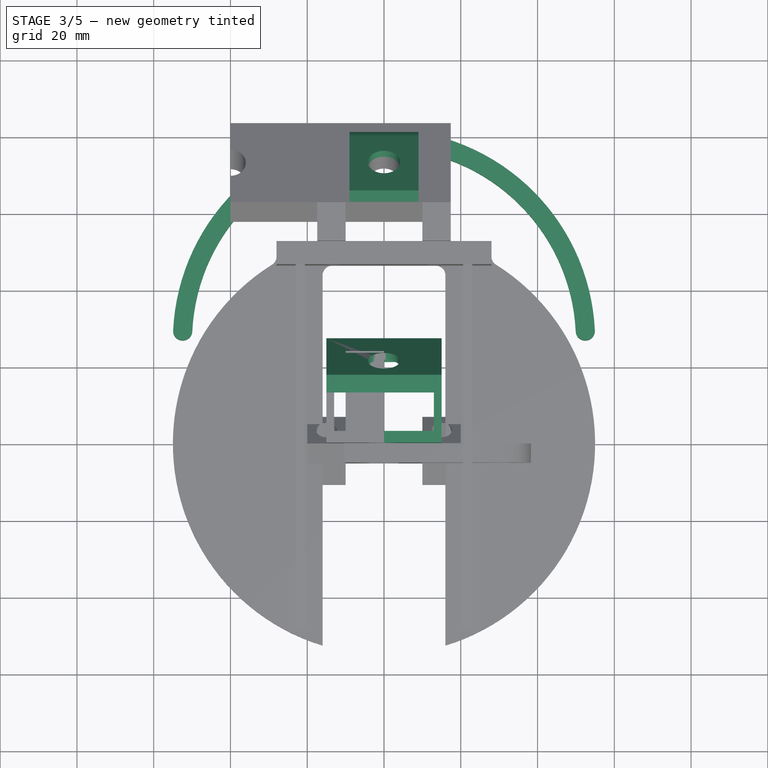
[diagram: stage 3 of 5 — top view after this stage's code; geometry added in this stage tinted green]
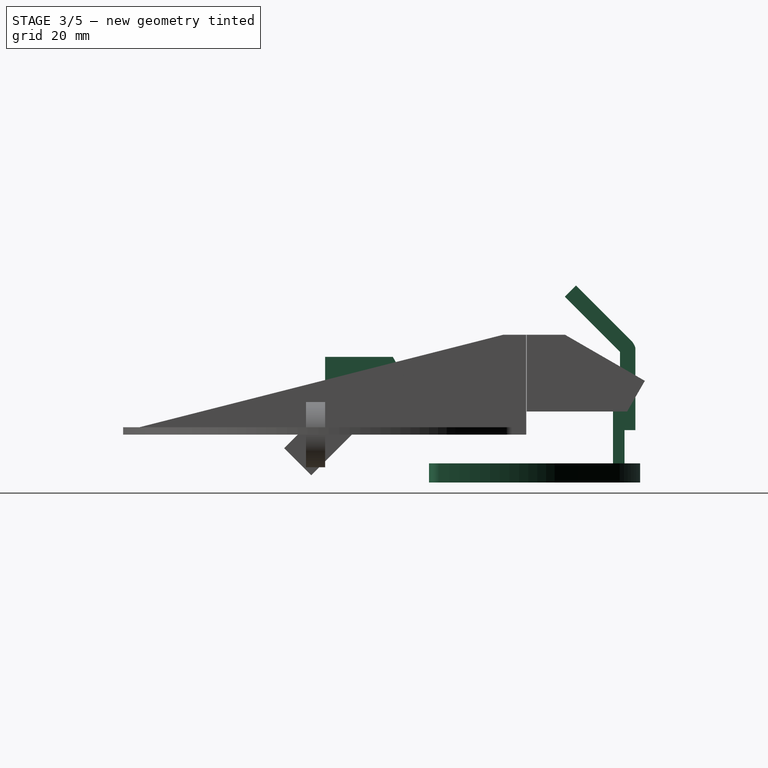
[diagram: stage 3 of 5 — right view after this stage's code; geometry added in this stage tinted green]
FEATURE [PartDesign::Body] Body002
  Group = -> [Sketch012,DatumPlane001,Sketch013,DatumLine,Sketch014,Sketch015,Pad008,Sketch016,AdditivePipe,Sketch017,Pad009,Sketch018,Pocket003,Mirrored004,Sketch019,Sketch020,Pad010,Pocket004,Sketch021,Pad011,DatumPlane002,Mirrored005,Sketch022,Pocket005,Mirrored006]
  Origin = -> Origin005
  Tip = -> Mirrored006
FEATURE [Sketcher::SketchObject] Sketch023
  AttachmentOffset = pos=(0,0,75) rot=(0,0,1;0rad)
  FullyConstrained = true
  MapMode = 5
  Placement = pos=(0,75,-1.67e-14) rot=(0,0.707107,0.707107;3.14159rad)
  Support = -> [XZ_Plane006]
  sketch-geometry (7):
    g0: Circle CenterX=-12 CenterY=4 CenterZ=0 NormalX=0 NormalY=0 NormalZ=1 AngleXU=0 Radius=1.7
    g1: LineSegment StartX=-15.7 StartY=-7.5 StartZ=0 EndX=-15.7 EndY=9.4 EndZ=0
    g2: LineSegment StartX=-15.7 StartY=9.4 StartZ=0 EndX=-12 EndY=9.4 EndZ=0
    g3: LineSegment StartX=-8.3 StartY=-7.5 StartZ=0 EndX=-8.3 EndY=9.4 EndZ=0
    g4: LineSegment StartX=-8.3 StartY=9.4 StartZ=0 EndX=-12 EndY=9.4 EndZ=0
    g5: LineSegment StartX=-12 StartY=4 StartZ=0 EndX=-12 EndY=9.4 EndZ=0
    g6: LineSegment StartX=-15.7 StartY=-7.5 StartZ=0 EndX=-8.3 EndY=-7.5 EndZ=0
  constraints (20):
    c: Diameter(g0) = 3.4
    c: Distance(g0,g-2) = 12
    c: Coincident(g1,g2)
    c: Horizontal(g2)
    c: Vertical(g1)
    c: Coincident(g3,g4)
    c: Horizontal(g4)
    c: Vertical(g3)
    c: Coincident(g4,g2)
    c: Equal(g4,g2)
    c: Coincident(g5,g0)
    c: Coincident(g5,g2)
    c: Vertical(g5)
    c: Distance(g3,g1) = 7.4
    c: Distance(g5) = 5.4
    c: Coincident(g6,g1)
    c: Coincident(g6,g3)
    c: Horizontal(g6)
    c: DistanceY(g-1,g0) = 4
    c: DistanceY(g3,g-1) = 7.5
FEATURE [PartDesign::Pad] Pad012
  Direction = (1,1,1)
  Length = 3
  Length2 = 100
  Placement = pos=(0,0,0) rot=(1,0,0;1.5708rad)
  Profile = -> Sketch023
  Type = 0
FEATURE [Sketcher::SketchObject] Sketch024
  FullyConstrained = true
  MapMode = 5
  Placement = pos=(0,-5e-15,-7.5) rot=(1,0,0;3.14159rad)
  Support = -> [Pad012]
FEATURE [Sketcher::SketchObject] Sketch025
  FullyConstrained = false
  MapMode = 5
  Placement = pos=(0,-5e-15,-7.5) rot=(1,0,0;3.14159rad)
  Support = -> [Pad012]
  sketch-geometry (5):
    g0: ArcOfCircle CenterX=0 CenterY=-27.0434 CenterZ=0 NormalX=0 NormalY=0 NormalZ=1 AngleXU=0 Radius=50 StartAngle=4.71239 EndAngle=6.23555
    g1: LineSegment StartX=0 StartY=-27.0434 StartZ=0 EndX=53.974 EndY=-27.0434 EndZ=0
    g2: LineSegment StartX=-9.2e-15 StartY=-77.0434 StartZ=0 EndX=0 EndY=-82.0434 EndZ=0
    g3: ArcOfCircle CenterX=0 CenterY=-27.0434 CenterZ=0 NormalX=0 NormalY=0 NormalZ=1 AngleXU=0 Radius=55 StartAngle=4.71239 EndAngle=6.23555
    g4: ArcOfCircle CenterX=52.4404 CenterY=-29.5434 CenterZ=0 NormalX=0 NormalY=0 NormalZ=1 AngleXU=0 Radius=2.5 StartAngle=6.23555 EndAngle=9.37714
  constraints (16):
    c: PointOnObject(g0,g-2)
    c: PointOnObject(g0,g-2)
    c: DistanceY(g0) = -77.0434
    c: Diameter(g0) = 100
    c: Coincident(g1,g0)
    c: Horizontal(g1)
    c: Coincident(g2,g0)
    c: PointOnObject(g2,g-2)
    c: Distance(g2) = 5
    c: Coincident(g3,g0)
    c: Coincident(g3,g2)
    c: Coincident(g4,g0)
    c: Coincident(g4,g3)
    c: Tangent(g4,g0)
    c: Tangent(g4,g3)
    c: Tangent(g4,g1)
FEATURE [PartDesign::Pad] Pad013
  BaseFeature = -> Pad012
  Direction = (1,1,1)
  Length = 5
  Length2 = 100
  Placement = pos=(0,0,0) rot=(1,0,0;1.5708rad)
  Profile = -> Sketch025
  Type = 0
FEATURE [PartDesign::Mirrored] Mirrored007
  BaseFeature = -> Pad013
  MirrorPlane = -> Sketch025 [V_Axis]
  Originals = -> [Pad013,Pad012]
  Placement = pos=(0,0,0) rot=(1,0,0;1.5708rad)
FEATURE [PartDesign::Body] Body003
  Group = -> [Sketch023,Pad012,Sketch024,Sketch025,Pad013,Mirrored007]
  Origin = -> Origin006
  Tip = -> Mirrored007
FEATURE [Sketcher::SketchObject] Sketch026
  FullyConstrained = false
  MapMode = 5
  Placement = pos=(0,0,0) rot=(0.57735,0.57735,0.57735;2.0944rad)
  Support = -> [YZ_Plane007]
  sketch-geometry (7):
    g0: LineSegment StartX=76.8244 StartY=1.14853 StartZ=0 EndX=80.8244 EndY=1.14853 EndZ=0
    g1: LineSegment StartX=80.8244 StartY=1.14853 StartZ=0 EndX=80.8244 EndY=22.5279 EndZ=0
    g2: LineSegment StartX=76.8244 StartY=21.5438 StartZ=0 EndX=76.8244 EndY=1.14853 EndZ=0
    g3: ArcOfCircle CenterX=76.8244 CenterY=21.5438 CenterZ=0 NormalX=0 NormalY=0 NormalZ=1 AngleXU=0 Radius=4.11929 StartAngle=0.241247 EndAngle=0.785398
    g4: LineSegment StartX=79.7371 StartY=24.4565 StartZ=0 EndX=65.3433 EndY=38.8504 EndZ=0
    g5: LineSegment StartX=65.3433 StartY=38.8504 StartZ=0 EndX=62.4305 EndY=35.9376 EndZ=0
    g6: LineSegment StartX=62.4305 StartY=35.9376 StartZ=0 EndX=76.8244 EndY=21.5438 EndZ=0
  constraints (15):
    c: Coincident(g0,g1)
    c: Coincident(g2,g0)
    c: Horizontal(g0)
    c: Vertical(g1)
    c: Vertical(g2)
    c: Coincident(g3,g2)
    c: Coincident(g3,g1)
    c: Tangent(g3,g4) = -1.5708
    c: Coincident(g4,g5)
    c: Coincident(g5,g6)
    c: Coincident(g6,g2)
    c: Angle(g6,g2) = 2.35619
    c: Perpendicular(g5,g6)
    c: Perpendicular(g4,g5)
    c: Distance(g0) = 4
FEATURE [PartDesign::Pad] Pad014
  Direction = (1,1,1)
  Length = 18
  Length2 = 100
  Midplane = true
  Placement = pos=(0,0,0) rot=(0.57735,0.57735,0.57735;2.0944rad)
  Profile = -> Sketch026
  Type = 0
FEATURE [Sketcher::SketchObject] Sketch027
  FullyConstrained = false
  MapMode = 5
  Placement = pos=(3.41e-14,76.8244,-2.56e-14) rot=(-0.57735,-0.57735,0.57735;4.18879rad)
  Support = -> [Pad014]
  sketch-geometry (1):
    g0: Circle CenterX=-11.0128 CenterY=0 CenterZ=0 NormalX=0 NormalY=0 NormalZ=1 AngleXU=0 Radius=4.2
  constraints (2):
    c: PointOnObject(g0,g-1)
    c: Diameter(g0) = 8.4
FEATURE [PartDesign::Pocket] Pocket006
  BaseFeature = -> Pad014
  Length = 5
  Length2 = 100
  Placement = pos=(0,0,0) rot=(0.57735,0.57735,0.57735;2.0944rad)
  Profile = -> Sketch027
  Type = 0
FEATURE [Sketcher::SketchObject] Sketch028
  FullyConstrained = true
  MapMode = 5
  Placement = pos=(3.41e-14,76.8244,-5.12e-14) rot=(0.57735,0.57735,-0.57735;2.0944rad)
  Support = -> [Pocket006]
FEATURE [Sketcher::SketchObject] Sketch029
  FullyConstrained = false
  MapMode = 5
  Placement = pos=(-1.37e-14,49.1841,49.1841) rot=(0.678598,0.678598,-0.281085;2.59356rad)
  Support = -> [Pocket006]
  sketch-geometry (1):
    g0: Circle CenterX=29.3469 CenterY=0 CenterZ=0 NormalX=0 NormalY=0 NormalZ=1 AngleXU=0 Radius=4.2
  constraints (2):
    c: PointOnObject(g0,g-1)
    c: Diameter(g0) = 8.4
FEATURE [PartDesign::Pocket] Pocket007
  BaseFeature = -> Pocket006
  Length = 5
  Length2 = 100
  Placement = pos=(0,0,0) rot=(0.57735,0.57735,0.57735;2.0944rad)
  Profile = -> Sketch029
  Type = 0
FEATURE [Sketcher::SketchObject] Sketch030
  ExternalGeometry = -> [Pocket007]
  FullyConstrained = true
  MapMode = 5
  Placement = pos=(-3e-14,49.1841,49.1841) rot=(0.678598,0.678598,-0.281085;2.59356rad)
  Support = -> [Pocket007]
  sketch-geometry (7):
    g0: LineSegment StartX=22.8469 StartY=3.75278 StartZ=0 EndX=22.8469 EndY=-3.75278 EndZ=0
    g1: LineSegment StartX=22.8469 StartY=-3.75278 StartZ=0 EndX=29.3469 EndY=-7.50555 EndZ=0
    g2: LineSegment StartX=29.3469 StartY=-7.50555 StartZ=0 EndX=35.8469 EndY=-3.75278 EndZ=0
    g3: LineSegment StartX=35.8469 StartY=-3.75278 StartZ=0 EndX=35.8469 EndY=3.75278 EndZ=0
    g4: LineSegment StartX=35.8469 StartY=3.75278 StartZ=0 EndX=29.3469 EndY=7.50555 EndZ=0
    g5: LineSegment StartX=29.3469 StartY=7.50555 StartZ=0 EndX=22.8469 EndY=3.75278 EndZ=0
    g6: Circle CenterX=29.3469 CenterY=6e-15 CenterZ=0 NormalX=0 NormalY=0 NormalZ=1 AngleXU=0 Radius=7.50555
  constraints (16):
    c: Coincident(g0,g1)
    c: Coincident(g1,g2)
    c: Coincident(g2,g3)
    c: Coincident(g3,g4)
    c: Coincident(g4,g5)
    c: Coincident(g5,g0)
    c: Equal(g0, g1-g5) x5
    c: PointOnObject(g0,g6)
    c: PointOnObject(g1,g6)
    c: PointOnObject(g2,g6)
    c: PointOnObject(g3,g6)
    c: PointOnObject(g4,g6)
    c: PointOnObject(g5,g6)
    c: Coincident(g6,g-3)
    c: Distance(g3,g0) = 13
    c: Vertical(g0)
FEATURE [PartDesign::Pocket] Pocket008
  BaseFeature = -> Pocket007
  Length = 2
  Length2 = 100
  Placement = pos=(0,0,0) rot=(0.57735,0.57735,0.57735;2.0944rad)
  Profile = -> Sketch030
  Type = 0
FEATURE [Sketcher::SketchObject] Sketch033
  FullyConstrained = true
  MapMode = 5
  Placement = pos=(-2.4e-15,18.5213,10.6933) rot=(-1,0,0;1.0472rad)
  Support = -> [Pad016]
FEATURE [Sketcher::SketchObject] Sketch034
  ExternalGeometry = -> [Pad016]
  FullyConstrained = true
  MapMode = 5
  Placement = pos=(-15,0,-4.7e-15) rot=(0.707107,0,-0.707107;3.14159rad)
  Support = -> [Pad016]
  sketch-geometry (4):
    g0: LineSegment StartX=-20.2565 StartY=-13 StartZ=0 EndX=-20.2565 EndY=-17.6188 EndZ=0
    g1: LineSegment StartX=-20.2565 StartY=-17.6188 StartZ=0 EndX=-3.25652 EndY=-27.4338 EndZ=0
    g2: LineSegment StartX=-3.25652 StartY=-27.4338 StartZ=0 EndX=-3.25652 EndY=-22.815 EndZ=0
    g3: LineSegment StartX=-20.2565 StartY=-13 StartZ=0 EndX=-3.25652 EndY=-22.815 EndZ=0
  constraints (10):
    c: Coincident(g0,g-3)
    c: Vertical(g0)
    c: Coincident(g1,g0)
    c: Coincident(g2,g1)
    c: Coincident(g2,g-3)
    c: Vertical(g2)
    c: Equal(g2,g0)
    c: Distance(g2,g1) = 4
    c: Coincident(g3,g0)
    c: Coincident(g3,g2)
FEATURE [PartDesign::Pad] Pad017
  BaseFeature = -> Pad016
  Direction = (1,1,1)
  Length = 15
  Length2 = 100
  Placement = pos=(0,0,0) rot=(1,0,0;1.5708rad)
  Profile = -> Sketch034
  Reversed = true
  Type = 0
FEATURE [Sketcher::SketchObject] Sketch035
  ExternalGeometry = -> [Pad017]
  FullyConstrained = true
  MapMode = 5
  Placement = pos=(-2.8e-15,21.9854,12.6933) rot=(-1,0,0;1.0472rad)
  Support = -> [Pad017]
  sketch-geometry (4):
    g0: LineSegment StartX=3.2e-15 StartY=-11.0427 StartZ=0 EndX=4.3e-15 EndY=-5.4277 EndZ=0
    g1: LineSegment StartX=7e-15 StartY=8.58725 StartZ=0 EndX=6.3e-15 EndY=2.9723 EndZ=0
    g2: ArcOfCircle CenterX=5.1e-15 CenterY=-1.2277 CenterZ=0 NormalX=0 NormalY=0 NormalZ=1 AngleXU=0 Radius=4.2 StartAngle=1.5708 EndAngle=4.71239
    g3: LineSegment StartX=4.3e-15 StartY=-5.4277 StartZ=0 EndX=6.3e-15 EndY=2.9723 EndZ=0
  constraints (11):
    c: Coincident(g0,g-3)
    c: PointOnObject(g0,g-3)
    c: Coincident(g1,g-3)
    c: PointOnObject(g1,g-3)
    c: PointOnObject(g2,g-3)
    c: Coincident(g2,g1)
    c: Coincident(g2,g0)
    c: Coincident(g3,g2)
    c: Coincident(g3,g2)
    c: Equal(g1,g0)
    c: Distance(g3) = 8.4
FEATURE [PartDesign::Pocket] Pocket009
  BaseFeature = -> Pad017
  Length = 5
  Length2 = 100
  Placement = pos=(0,0,0) rot=(1,0,0;1.5708rad)
  Profile = -> Sketch035
  Type = 0
FEATURE [Sketcher::SketchObject] Sketch036
  ExternalGeometry = -> [Pocket009]
  FullyConstrained = true
  MapMode = 5
  Placement = pos=(-2.4e-15,18.5213,10.6933) rot=(1,0,0;2.0944rad)
  Support = -> [Pocket009]
  sketch-geometry (7):
    g0: LineSegment StartX=3.75278 StartY=7.7277 StartZ=0 EndX=-3.75278 EndY=7.7277 EndZ=0
    g1: LineSegment StartX=-3.75278 StartY=7.7277 StartZ=0 EndX=-7.50555 EndY=1.2277 EndZ=0
    g2: LineSegment StartX=-7.50555 StartY=1.2277 StartZ=0 EndX=-3.75278 EndY=-5.2723 EndZ=0
    g3: LineSegment StartX=-3.75278 StartY=-5.2723 StartZ=0 EndX=3.75278 EndY=-5.2723 EndZ=0
    g4: LineSegment StartX=3.75278 StartY=-5.2723 StartZ=0 EndX=7.50555 EndY=1.2277 EndZ=0
    g5: LineSegment StartX=7.50555 StartY=1.2277 StartZ=0 EndX=3.75278 EndY=7.7277 EndZ=0
    g6: Circle CenterX=5.1e-15 CenterY=1.2277 CenterZ=0 NormalX=0 NormalY=0 NormalZ=1 AngleXU=0 Radius=7.50555
  constraints (16):
    c: Coincident(g0,g1)
    c: Coincident(g1,g2)
    c: Coincident(g2,g3)
    c: Coincident(g3,g4)
    c: Coincident(g4,g5)
    c: Coincident(g5,g0)
    c: Equal(g0, g1-g5) x5
    c: PointOnObject(g0,g6)
    c: PointOnObject(g1,g6)
    c: PointOnObject(g2,g6)
    c: PointOnObject(g3,g6)
    c: PointOnObject(g4,g6)
    c: PointOnObject(g5,g6)
    c: Coincident(g6,g-3)
    c: Horizontal(g0)
    c: Distance(g3,g0) = 13
FEATURE [PartDesign::Pocket] Pocket010
  BaseFeature = -> Pocket009
  Length = 2
  Length2 = 100
  Placement = pos=(0,0,0) rot=(1,0,0;1.5708rad)
  Profile = -> Sketch036
  Type = 0
FEATURE [PartDesign::Mirrored] Mirrored008
  BaseFeature = -> Pocket010
  MirrorPlane = -> Sketch031 [V_Axis]
  Originals = -> [Pad015,Pad016,Pad017,Pocket009,Pocket010]
  Placement = pos=(0,0,0) rot=(1,0,0;1.5708rad)
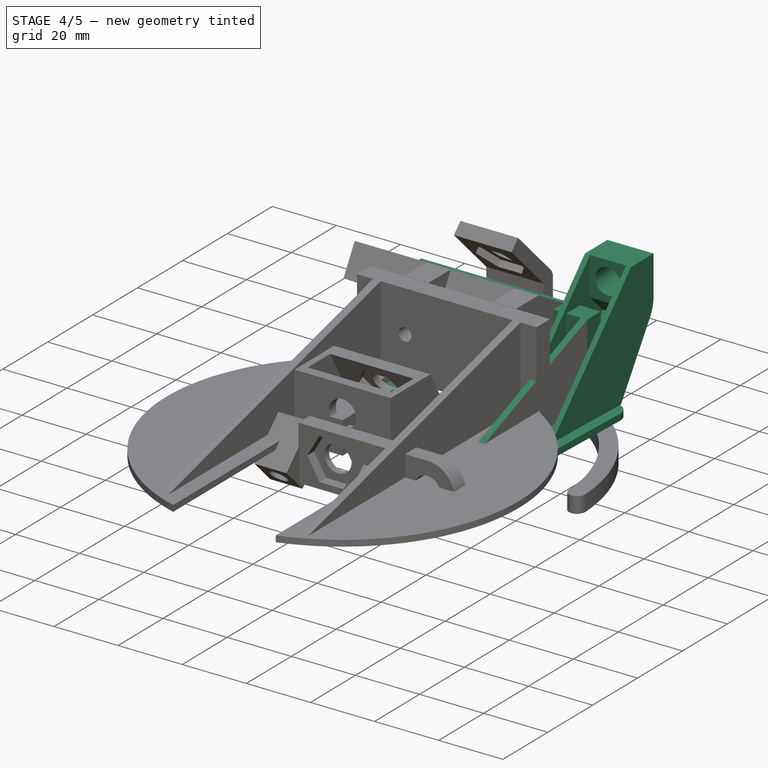
[diagram: stage 4 of 5 — iso view after this stage's code; geometry added in this stage tinted green]
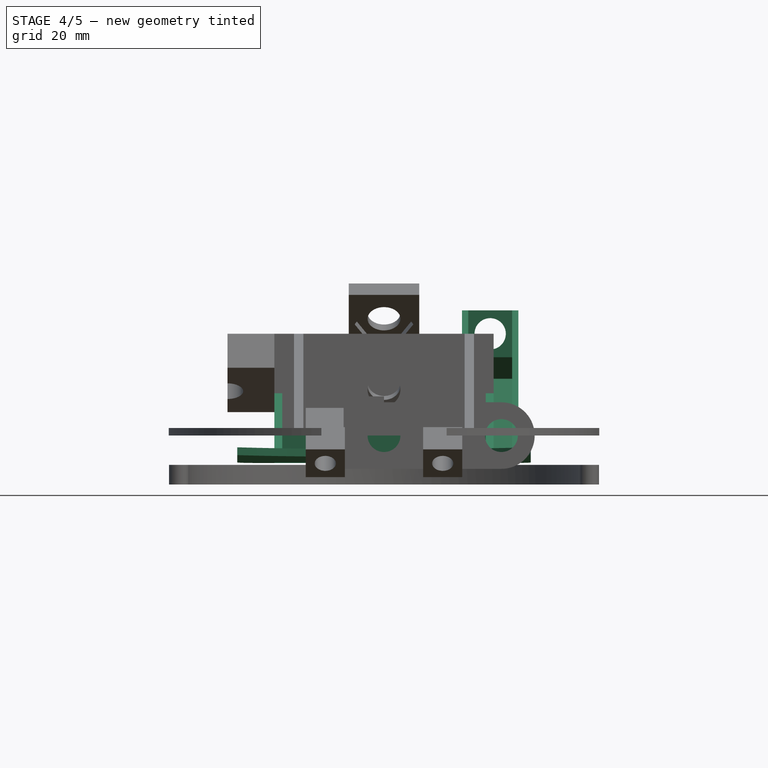
[diagram: stage 4 of 5 — front view after this stage's code; geometry added in this stage tinted green]
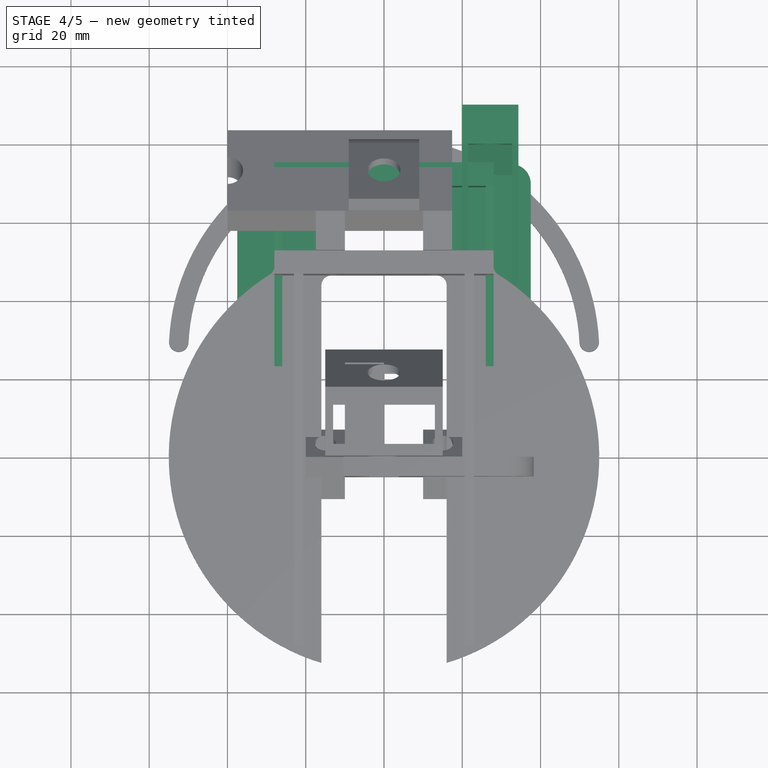
[diagram: stage 4 of 5 — top view after this stage's code; geometry added in this stage tinted green]
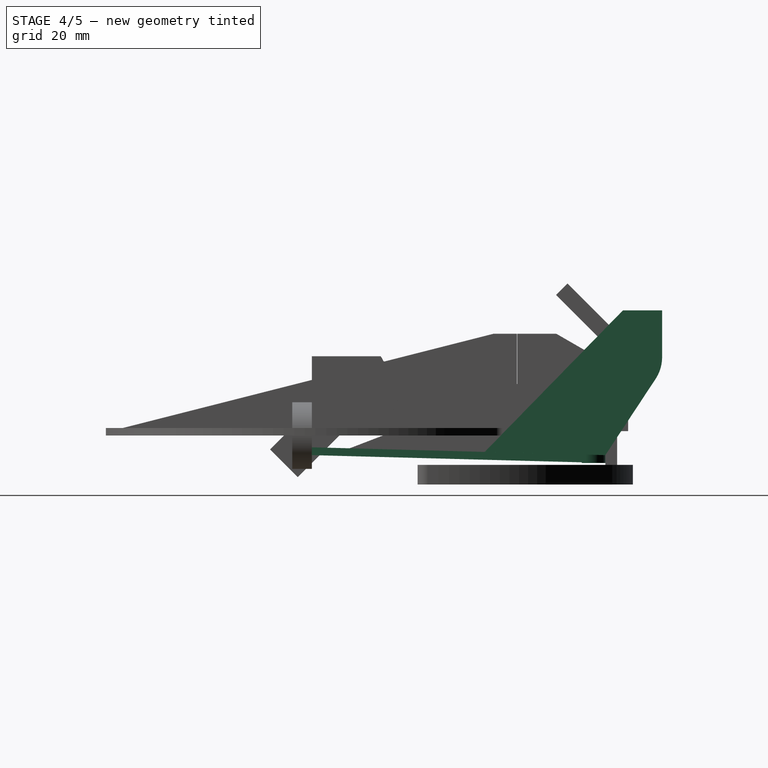
[diagram: stage 4 of 5 — right view after this stage's code; geometry added in this stage tinted green]
FEATURE [PartDesign::Body] Mirrored003Body
  Group = -> [Sketch010,Pad005,Sketch011,Pad006,Mirrored003]
  Origin = -> Origin004
  Tip = -> Mirrored003
FEATURE [Sketcher::SketchObject] Sketch012
  FullyConstrained = false
  MapMode = 5
  Placement = pos=(0,0,0) rot=(1,0,0;1.5708rad)
  Support = -> [XZ_Plane005]
  sketch-geometry (3):
    g0: LineSegment StartX=-1.18745 StartY=-5 StartZ=0 EndX=1.18745 EndY=-5 EndZ=0
    g1: LineSegment StartX=-1.18745 StartY=-5 StartZ=0 EndX=0 EndY=-2.17851 EndZ=0
    g2: LineSegment StartX=0 StartY=-2.17851 StartZ=0 EndX=1.18745 EndY=-5 EndZ=0
  constraints (7):
    c: Horizontal(g0)
    c: Distance(g-1,g0) = 5
    c: Coincident(g1,g0)
    c: PointOnObject(g1,g-2)
    c: Coincident(g2,g1)
    c: Coincident(g2,g0)
    c: Equal(g2,g1)
FEATURE [Sketcher::SketchObject] Sketch013
  AttachmentOffset = pos=(0,0,-75) rot=(0,0,1;0rad)
  FullyConstrained = false
  MapMode = 5
  Placement = pos=(0,75,-1.67e-14) rot=(1,0,0;1.5708rad)
  Support = -> [XZ_Plane005]
  sketch-geometry (1):
    g0: LineSegment StartX=0 StartY=-7 StartZ=0 EndX=5.04217 EndY=-7 EndZ=0
  constraints (3):
    c: PointOnObject(g0,g-2)
    c: Horizontal(g0)
    c: Distance(g-1,g0) = 7
FEATURE [PartDesign::Plane] DatumPlane001
  Length = 93.6531
  MapMode = 13
  Placement = pos=(4.77729e-11,25,-5.66667) rot=(0,0.01333,0.999911;3.14159rad)
  ResizeMode = 0
  Support = -> [Sketch012,Sketch013]
  Width = 134.632
FEATURE [PartDesign::Line] DatumLine
  AttacherType = Attacher::AttachEngineLine
  AttachmentOffset = pos=(75,0,0) rot=(0,0,1;0rad)
  Length = 20
  MapMode = 29
  Placement = pos=(0,75,-5) rot=(0.57735,0.57735,0.57735;2.0944rad)
  ResizeMode = 0
  Support = -> [Sketch012]
FEATURE [Sketcher::SketchObject] Sketch014
  ExternalGeometry = -> [DatumLine]
  FullyConstrained = true
  MapMode = 5
  Placement = pos=(4.77729e-11,25,-5.66667) rot=(0,0.01333,0.999911;3.14159rad)
  Support = -> [DatumPlane001]
  sketch-geometry (8):
    g0: ArcOfCircle CenterX=0 CenterY=58.1074 CenterZ=0 NormalX=0 NormalY=0 NormalZ=1 AngleXU=0 Radius=50 StartAngle=5.03812 EndAngle=5.56045
    g1: LineSegment StartX=16 StartY=10.7366 StartZ=0 EndX=16 EndY=-42.4634 EndZ=0
    g2: ArcOfCircle CenterX=14 CenterY=-42.4634 CenterZ=0 NormalX=0 NormalY=0 NormalZ=1 AngleXU=0 Radius=2 StartAngle=4.71239 EndAngle=6.28319
    g3: LineSegment StartX=37.5 StartY=25.0355 StartZ=0 EndX=37.5 EndY=-44.9645 EndZ=0
    g4: ArcOfCircle CenterX=32.5 CenterY=-44.9645 CenterZ=0 NormalX=0 NormalY=0 NormalZ=1 AngleXU=0 Radius=5 StartAngle=4.71239 EndAngle=6.28319
    g5: LineSegment StartX=14 StartY=-44.4634 StartZ=0 EndX=0 EndY=-44.4634 EndZ=0
    g6: LineSegment StartX=32.5 StartY=-49.9645 StartZ=0 EndX=0 EndY=-49.9645 EndZ=0
    g7: LineSegment StartX=0 StartY=-49.9645 StartZ=0 EndX=0 EndY=-44.4634 EndZ=0
  constraints (27):
    c: PointOnObject(g0,g-2)
    c: Coincident(g1,g0)
    c: Vertical(g1)
    c: Coincident(g2,g1)
    c: Coincident(g3,g0)
    c: Vertical(g3)
    c: Coincident(g4,g3)
    c: PointOnObject(g4,g-3)
    c: Tangent(g4,g3)
    c: Tangent(g2,g1)
    c: Distance(g3) = 70
    c: Tangent(g4,g-3)
    c: Diameter(g4) = 10
    c: Diameter(g0) = 100
    c: Distance(g0,g-2) = 37.5
    c: Distance(g0,g-2) = 16
    c: Distance(g1) = 53.2
    c: Diameter(g2) = 4
    c: Coincident(g5,g2)
    c: PointOnObject(g5,g-2)
    c: Horizontal(g5)
    c: Tangent(g5,g2)
    c: PointOnObject(g6,g-2)
    c: Horizontal(g6)
    c: Coincident(g6,g4)
    c: Coincident(g7,g6)
    c: Coincident(g7,g5)
FEATURE [Sketcher::SketchObject] Sketch015
  AttachmentOffset = pos=(0,0,-75) rot=(0,0,1;0rad)
  FullyConstrained = true
  MapMode = 5
  Placement = pos=(0,75,-1.67e-14) rot=(1,0,0;1.5708rad)
  Support = -> [XZ_Plane005]
  sketch-geometry (6):
    g0: ArcOfCircle CenterX=0 CenterY=11 CenterZ=0 NormalX=0 NormalY=0 NormalZ=1 AngleXU=0 Radius=4.2 StartAngle=1.5708 EndAngle=4.71239
    g1: LineSegment StartX=0 StartY=-7 StartZ=0 EndX=-28 EndY=-7 EndZ=0
    g2: LineSegment StartX=-28 StartY=-7 StartZ=0 EndX=-28 EndY=19.5 EndZ=0
    g3: LineSegment StartX=-28 StartY=19.5 StartZ=0 EndX=0 EndY=19.5 EndZ=0
    g4: LineSegment StartX=0 StartY=19.5 StartZ=0 EndX=0 EndY=15.2 EndZ=0
    g5: LineSegment StartX=-8e-16 StartY=6.8 StartZ=0 EndX=0 EndY=-7 EndZ=0
  constraints (18):
    c: PointOnObject(g0,g-2)
    c: Coincident(g1,g2)
    c: Coincident(g2,g3)
    c: Coincident(g3,g4)
    c: Coincident(g5,g1)
    c: Horizontal(g1)
    c: Horizontal(g3)
    c: Vertical(g2)
    c: Vertical(g4)
    c: PointOnObject(g1,g-2)
    c: Coincident(g4,g0)
    c: Coincident(g5,g0)
    c: Tangent(g4,g5)
    c: Diameter(g0) = 8.4
    c: Distance(g0,g3) = 8.5
    c: Distance(g3) = 28
    c: Distance(g-1,g1) = 7
    c: Distance(g0,g-1) = 11
FEATURE [PartDesign::Pad] Pad008
  Direction = (1,1,1)
  Length = 6
  Length2 = 100
  Placement = pos=(0,0,0) rot=(1,0,0;1.5708rad)
  Profile = -> Sketch015
  Type = 0
FEATURE [Sketcher::SketchObject] Sketch016
  FullyConstrained = true
  MapMode = 5
  Placement = pos=(0,0,0) rot=(1,0,0;1.5708rad)
  Support = -> [XZ_Plane005]
  sketch-geometry (1):
    g0: LineSegment StartX=0 StartY=0 StartZ=0 EndX=0 EndY=2 EndZ=0
  constraints (3):
    c: Coincident(g0,g-1)
    c: PointOnObject(g0,g-2)
    c: Distance(g0) = 2
FEATURE [PartDesign::AdditivePipe] AdditivePipe
  AuxilleryCurvelinear = true
  AuxillerySpineTangent = false
  BaseFeature = -> Pad008
  Binormal = (0,0,0)
  Mode = 0
  Placement = pos=(0,0,0) rot=(1,0,0;1.5708rad)
  Profile = -> Sketch014
  Spine = -> Sketch016
  SpineTangent = false
  Transformation = 0
  Transition = 0
FEATURE [Sketcher::SketchObject] Sketch017
  AttachmentOffset = pos=(0,0,-26) rot=(0,0,1;0rad)
  ExternalGeometry = -> [AdditivePipe]
  FullyConstrained = false
  MapMode = 5
  Placement = pos=(-26,5.8e-15,-5.8e-15) rot=(0.57735,0.57735,0.57735;2.0944rad)
  Support = -> [YZ_Plane005]
  sketch-geometry (3):
    g0: LineSegment StartX=69 StartY=19.5 StartZ=0 EndX=9.65566 EndY=-3.25748 EndZ=0
    g1: LineSegment StartX=9.65566 StartY=-3.25748 StartZ=0 EndX=69 EndY=-5 EndZ=0
    g2: LineSegment StartX=69 StartY=-5 StartZ=0 EndX=69 EndY=19.5 EndZ=0
  constraints (8):
    c: Coincident(g0,g1)
    c: Coincident(g1,g2)
    c: Coincident(g2,g0)
    c: Distance(g0,g-1) = 19.5
    c: Vertical(g2)
    c: Distance(g0,g-2) = 69
    c: Distance(g1,g-1) = 5
    c: PointOnObject(g0,g-3)
FEATURE [PartDesign::Pad] Pad009
  BaseFeature = -> AdditivePipe
  Direction = (1,1,1)
  Length = 2
  Length2 = 100
  Placement = pos=(0,0,0) rot=(1,0,0;1.5708rad)
  Profile = -> Sketch017
  Reversed = true
  Type = 0
FEATURE [Sketcher::SketchObject] Sketch018
  AttachmentOffset = pos=(0,0,-69) rot=(0,0,1;0rad)
  FullyConstrained = true
  MapMode = 5
  Placement = pos=(0,69,-1.53e-14) rot=(1,0,0;1.5708rad)
  Support = -> [XZ_Plane005]
  sketch-geometry (7):
    g0: LineSegment StartX=3.75278 StartY=17.5 StartZ=0 EndX=-3.75278 EndY=17.5 EndZ=0
    g1: LineSegment StartX=-3.75278 StartY=17.5 StartZ=0 EndX=-7.50555 EndY=11 EndZ=0
    g2: LineSegment StartX=-7.50555 StartY=11 StartZ=0 EndX=-3.75278 EndY=4.5 EndZ=0
    g3: LineSegment StartX=-3.75278 StartY=4.5 StartZ=0 EndX=3.75278 EndY=4.5 EndZ=0
    g4: LineSegment StartX=3.75278 StartY=4.5 StartZ=0 EndX=7.50555 EndY=11 EndZ=0
    g5: LineSegment StartX=7.50555 StartY=11 StartZ=0 EndX=3.75278 EndY=17.5 EndZ=0
    g6: Circle CenterX=0 CenterY=11 CenterZ=0 NormalX=0 NormalY=0 NormalZ=1 AngleXU=0 Radius=7.50555
  constraints (17):
    c: Coincident(g0,g1)
    c: Coincident(g1,g2)
    c: Coincident(g2,g3)
    c: Coincident(g3,g4)
    c: Coincident(g4,g5)
    c: Coincident(g5,g0)
    c: Equal(g0, g1-g5) x5
    c: PointOnObject(g0,g6)
    c: PointOnObject(g1,g6)
    c: PointOnObject(g2,g6)
    c: PointOnObject(g3,g6)
    c: PointOnObject(g4,g6)
    c: PointOnObject(g5,g6)
    c: PointOnObject(g6,g-2)
    c: Distance(g3,g0) = 13
    c: Horizontal(g0)
    c: Distance(g-1,g6) = 11
FEATURE [PartDesign::Pocket] Pocket003
  BaseFeature = -> Pad009
  Length = 3
  Length2 = 100
  Placement = pos=(0,0,0) rot=(1,0,0;1.5708rad)
  Profile = -> Sketch018
  Type = 0
FEATURE [PartDesign::Mirrored] Mirrored004
  BaseFeature = -> Pocket003
  MirrorPlane = -> Sketch015 [V_Axis]
  Originals = -> [Pad008,AdditivePipe,Pad009,Pocket003]
  Placement = pos=(0,0,0) rot=(1,0,0;1.5708rad)
FEATURE [Sketcher::SketchObject] Sketch019
  AttachmentOffset = pos=(0,0,-89.5) rot=(0,0,1;0rad)
  FullyConstrained = true
  MapMode = 5
  Placement = pos=(0,89.5,-1.99e-14) rot=(1,0,0;1.5708rad)
  Support = -> [XZ_Plane005]
  sketch-geometry (2):
    g0: Circle CenterX=27.1293 CenterY=26 CenterZ=0 NormalX=0 NormalY=0 NormalZ=1 AngleXU=0 Radius=4
    g1: LineSegment StartX=0 StartY=0 StartZ=0 EndX=0 EndY=11 EndZ=0
  constraints (7):
    c: Diameter(g0) = 8
    c: Coincident(g1,g-1)
    c: Distance(g1) = 11
    c: Distance(g1,g0) = 31
    c: Distance(g0,g-1) = 26
    c: Vertical(g1)
    c: Distance(g0,g-2) = 27.1293
FEATURE [Sketcher::SketchObject] Sketch020
  AttachmentOffset = pos=(0,0,27.1293) rot=(0,0,1;0rad)
  ExternalGeometry = -> [Sketch019,Mirrored004]
  FullyConstrained = true
  MapMode = 5
  Placement = pos=(27.1293,-6e-15,6e-15) rot=(0.57735,0.57735,0.57735;2.0944rad)
  Support = -> [YZ_Plane005]
  expr: .AttachmentOffset.Base.z = Sketch019.Constraints[6]
  sketch-geometry (10):
    g0: ArcOfCircle CenterX=79.5 CenterY=20 CenterZ=0 NormalX=0 NormalY=0 NormalZ=1 AngleXU=0 Radius=10 StartAngle=5.70047 EndAngle=6.28319
    g1: LineSegment StartX=79.5 StartY=20 StartZ=0 EndX=79.5 EndY=32 EndZ=0
    g2: LineSegment StartX=79.5 StartY=32 StartZ=0 EndX=89.5 EndY=32 EndZ=0
    g3: LineSegment StartX=89.5 StartY=32 StartZ=0 EndX=89.5 EndY=20 EndZ=0
    g4: LineSegment StartX=89.5 StartY=30 StartZ=0 EndX=89.5 EndY=32 EndZ=0
    g5: LineSegment StartX=89.5 StartY=22 StartZ=0 EndX=89.5 EndY=20 EndZ=0
    g6: LineSegment StartX=75 StartY=-5 StartZ=0 EndX=87.8497 EndY=14.497 EndZ=0
    g7: LineSegment StartX=79.5 StartY=20 StartZ=0 EndX=84.9863 EndY=14.5137 EndZ=0
    g8: LineSegment StartX=84.9863 StartY=14.5137 StartZ=0 EndX=72.1256 EndY=-5 EndZ=0
    g9: LineSegment StartX=72.1256 StartY=-5 StartZ=0 EndX=75 EndY=-5 EndZ=0
  constraints (28):
    c: Coincident(g1,g2)
    c: Coincident(g2,g3)
    c: Horizontal(g2)
    c: Vertical(g1)
    c: Vertical(g3)
    c: Coincident(g4,g-3)
    c: Coincident(g4,g2)
    c: Vertical(g4)
    c: Coincident(g5,g-3)
    c: Coincident(g5,g0)
    c: Equal(g4,g5)
    c: Distance(g4) = 2
    c: Coincident(g0,g3)
    c: Tangent(g0,g3)
    c: Distance(g2) = 10
    c: PointOnObject(g6,g-4)
    c: Distance(g6,g-4) = 2
    c: Coincident(g6,g0)
    c: Tangent(g0,g6)
    c: Coincident(g0,g1)
    c: Coincident(g7,g0)
    c: Distance(g7,g6) = 2.4
    c: Angle(g7,g1) = 2.35619
    c: Coincident(g8,g7)
    c: Coincident(g9,g8)
    c: Coincident(g9,g6)
    c: Horizontal(g9)
    c: Distance(g6,g8) = 2.4
FEATURE [PartDesign::Pad] Pad010
  BaseFeature = -> Mirrored004
  Direction = (1,1,1)
  Length = 14.4
  Length2 = 100
  Midplane = true
  Placement = pos=(0,0,0) rot=(1,0,0;1.5708rad)
  Profile = -> Sketch020
  Type = 0
FEATURE [PartDesign::Pocket] Pocket004
  BaseFeature = -> Pad010
  Length = 5
  Length2 = 100
  Placement = pos=(0,0,0) rot=(1,0,0;1.5708rad)
  Profile = -> Sketch019
  Reversed = true
  Type = 1
FEATURE [Sketcher::SketchObject] Sketch021
  ExternalGeometry = -> [Pocket004]
  FullyConstrained = true
  MapMode = 5
  Placement = pos=(34.3293,-6.6e-15,7e-15) rot=(0.707107,0,0.707107;3.14159rad)
  Support = -> [Pocket004]
  sketch-geometry (5):
    g0: LineSegment StartX=32 StartY=-79.5 StartZ=0 EndX=20 EndY=-79.5 EndZ=0
    g1: LineSegment StartX=20 StartY=-79.5 StartZ=0 EndX=14.5137 EndY=-84.9863 EndZ=0
    g2: LineSegment StartX=14.5137 StartY=-84.9863 StartZ=0 EndX=-4.92467 EndY=-72.1753 EndZ=0
    g3: LineSegment StartX=-4.92467 StartY=-72.1753 StartZ=0 EndX=-4.17827 EndY=-44.1852 EndZ=0
    g4: LineSegment StartX=-4.17827 StartY=-44.1852 StartZ=0 EndX=32 EndY=-79.5 EndZ=0
  constraints (11):
    c: Coincident(g-3,g0)
    c: Coincident(g0,g-4)
    c: Coincident(g0,g1)
    c: Coincident(g1,g-5)
    c: Coincident(g1,g2)
    c: Coincident(g2,g-5)
    c: Coincident(g2,g3)
    c: Coincident(g3,g4)
    c: Coincident(g4,g0)
    c: PointOnObject(g3,g-6)
    c: Distance(g3) = 28
FEATURE [PartDesign::Pad] Pad011
  BaseFeature = -> Pocket004
  Direction = (1,1,1)
  Length = 1.6
  Length2 = 100
  Placement = pos=(0,0,0) rot=(1,0,0;1.5708rad)
  Profile = -> Sketch021
  Reversed = true
  Type = 0
FEATURE [PartDesign::Plane] DatumPlane002
  AttachmentOffset = pos=(0,0,-4) rot=(0,0,1;0rad)
  Length = 73.1574
  MapMode = 10
  Placement = pos=(27.1293,79.5,26) rot=(0,1,0;1.5708rad)
  ResizeMode = 0
  Support = -> [Pad011]
  Width = 130.657
FEATURE [PartDesign::Mirrored] Mirrored005
  BaseFeature = -> Pad011
  MirrorPlane = -> DatumPlane002
  Originals = -> [Pad011]
  Placement = pos=(0,0,0) rot=(1,0,0;1.5708rad)
FEATURE [Sketcher::SketchObject] Sketch022
  ExternalGeometry = -> [Mirrored005]
  FullyConstrained = true
  MapMode = 5
  Placement = pos=(0,75,-9.99e-14) rot=(-1,0,0;1.5708rad)
  Support = -> [Mirrored005]
  sketch-geometry (2):
    g0: Circle CenterX=12 CenterY=-4 CenterZ=0 NormalX=0 NormalY=0 NormalZ=1 AngleXU=0 Radius=1.7
    g1: LineSegment StartX=12 StartY=-4 StartZ=0 EndX=0 EndY=-4 EndZ=0
  constraints (6):
    c: Diameter(g0) = 3.4
    c: DistanceY(g-3,g0) = 7
    c: Coincident(g1,g0)
    c: PointOnObject(g1,g-2)
    c: Horizontal(g1)
    c: Distance(g1) = 12
FEATURE [PartDesign::Pocket] Pocket005
  BaseFeature = -> Mirrored005
  Length = 10
  Length2 = 100
  Placement = pos=(0,0,0) rot=(1,0,0;1.5708rad)
  Profile = -> Sketch022
  Type = 1
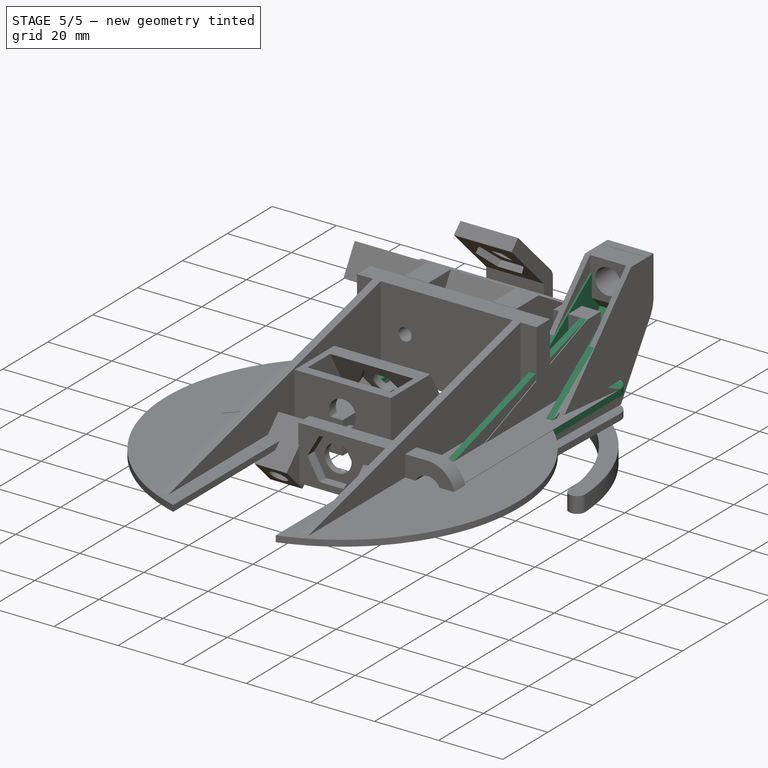
[diagram: stage 5 of 5 — iso view after this stage's code; geometry added in this stage tinted green]
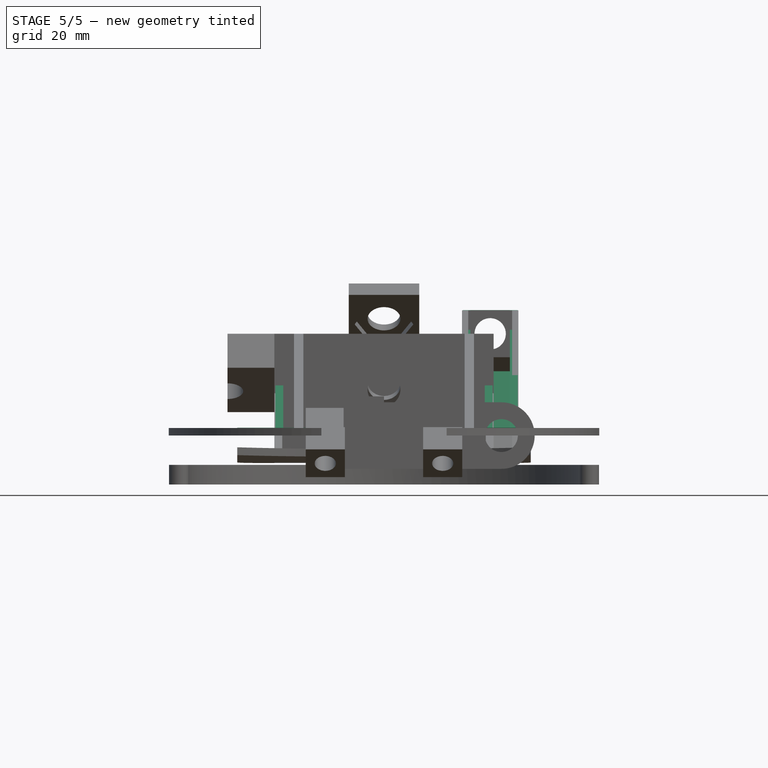
[diagram: stage 5 of 5 — front view after this stage's code; geometry added in this stage tinted green]
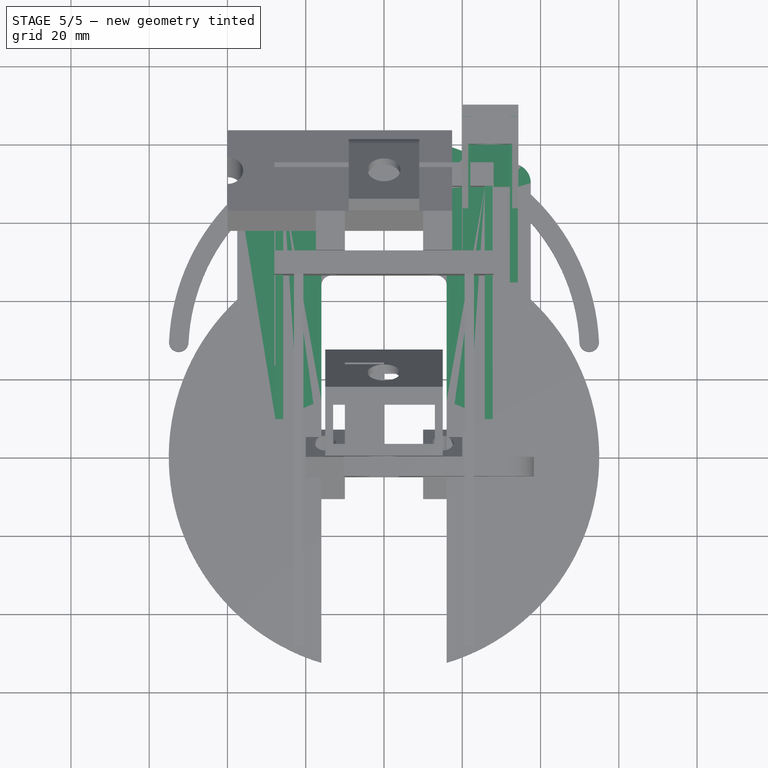
[diagram: stage 5 of 5 — top view after this stage's code; geometry added in this stage tinted green]
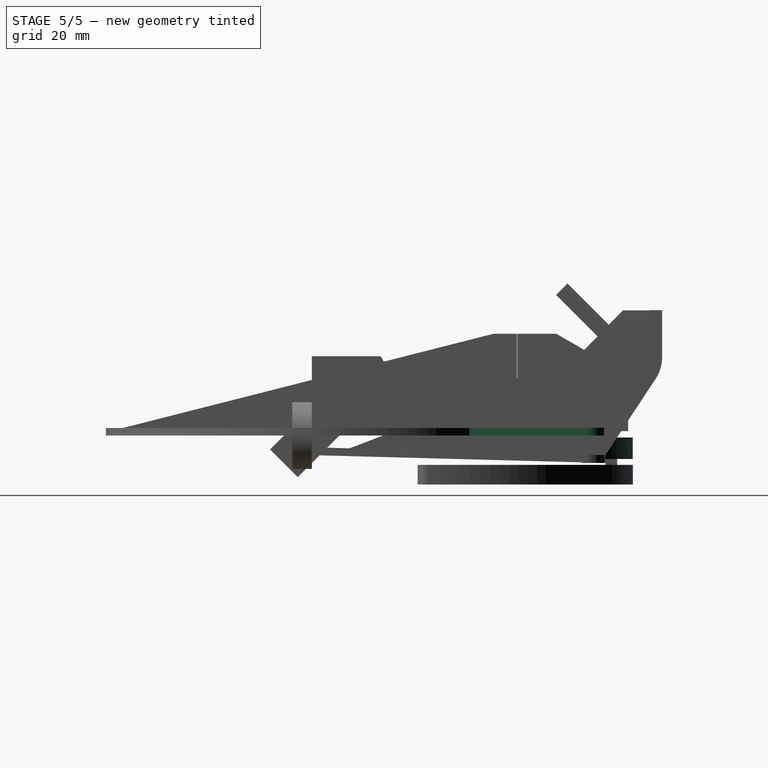
[diagram: stage 5 of 5 — right view after this stage's code; geometry added in this stage tinted green]
FEATURE [Sketcher::SketchObject] Sketch
  FullyConstrained = false
  MapMode = 5
  Support = -> [XY_Plane]
  constraints (26):
    c: PointOnObject(g0,g-2)
    c: Diameter(g0) = 100
    c: Coincident(g1,g0)
    c: Vertical(g1)
    c: Coincident(g2,g0)
    c: Vertical(g2)
    c: Coincident(g4,g3)
    c: PointOnObject(g4,g-2)
    c: Horizontal(g4)
    c: PointOnObject(g5,g-2)
    c: Horizontal(g5)
    c: Tangent(g3,g2) = 1.5708
    c: Tangent(g3,g4)
    c: PointOnObject(g0,g-1)
    c: Distance(g-1,g0) = 37.5
    c: Distance(g0,g-2) = 16
    c: Distance(g5,g4) = 6
    c: Distance(g-1,g5) = 69
    c: Coincident(g6,g5)
    c: Coincident(g6,g1)
    c: Tangent(g5,g6)
    c: Tangent(g6,g1)
    c: Diameter(g3) = 10
    c: Diameter(g6) = 3
    c: Coincident(g7,g5)
    c: Coincident(g7,g4)
FEATURE [PartDesign::Pad] Pad
  AllowMultiFace = false
  Direction = (1,1,1)
  Length = 2
  Length2 = 100
  Profile = -> Sketch
  Type = 0
FEATURE [Sketcher::SketchObject] Sketch001
  FullyConstrained = false
  MapMode = 5
  Placement = pos=(0,75,0) rot=(0,0.707107,0.707107;3.14159rad)
  Support = -> [Pad]
  constraints (35):
    c: PointOnObject(g0,g-2)
    c: PointOnObject(g0,g-2)
    c: PointOnObject(g0,g-2)
    c: Diameter(g0) = 8.4
    c: Distance(g0,g-1) = 11
    c: Coincident(g1,g0)
    c: PointOnObject(g1,g-2)
    c: Distance(g-1,g1) = 2
    c: Coincident(g2,g1)
    c: Horizontal(g2)
    c: Coincident(g3,g2)
    c: Vertical(g3)
    c: Coincident(g4,g3)
    c: PointOnObject(g4,g-2)
    c: Horizontal(g4)
    c: Coincident(g5,g4)
    c: Coincident(g5,g0)
    c: Distance(g2) = 27.75
    c: Coincident(g6,g7)
    c: Coincident(g7,g8)
    c: Coincident(g8,g9)
    c: Coincident(g9,g10)
    c: Coincident(g10,g11)
    c: Coincident(g11,g6)
    c: Equal(g6, g7-g11) x5
    c: PointOnObject(g6,g12)
    c: PointOnObject(g7,g12)
    c: PointOnObject(g8,g12)
    c: PointOnObject(g9,g12)
    c: PointOnObject(g10,g12)
    c: PointOnObject(g11,g12)
    c: Coincident(g12,g0)
    c: Distance(g10,g6) = 13
    c: Horizontal(g7)
    c: Distance(g6,g4) = 2
FEATURE [PartDesign::Pad] Pad001
  AllowMultiFace = false
  BaseFeature = -> Pad
  Direction = (1,1,1)
  Length = 6
  Length2 = 100
  Profile = -> Sketch001
  Reversed = true
  Type = 0
FEATURE [PartDesign::Pad] Pad002  label="Unnamed"
  AllowMultiFace = false
  Direction = (1,1,1)
  Length = 100
  Length2 = 100
  Type = 0
FEATURE [Sketcher::SketchObject] Sketch002  label="Sketch003"
  ExternalGeometry = -> [Pad001]
  FullyConstrained = false
  MapMode = 5
  Placement = pos=(0,69,0) rot=(1,0,0;1.5708rad)
  Support = -> [Pad002]
  sketch-geometry (3):
    g0: LineSegment StartX=-9.65154 StartY=2 StartZ=0 EndX=-69 EndY=19.5 EndZ=0
    g1: LineSegment StartX=7.56329 StartY=11 StartZ=0 EndX=3.78164 EndY=17.55 EndZ=0
    g2: LineSegment StartX=-3.78164 StartY=17.55 StartZ=0 EndX=-7.56329 EndY=11 EndZ=0
  constraints (6):
    c: Coincident(g0,g-3)
    c: Horizontal(g0)
    c: Coincident(g1,g0)
    c: Coincident(g1,g-3)
    c: Coincident(g2,g0)
    c: Coincident(g2,g1)
FEATURE [Sketcher::SketchObject] Sketch003  label="Unnamed"
  FullyConstrained = true
FEATURE [PartDesign::Pocket] Pocket
  AllowMultiFace = false
  BaseFeature = -> Pad002
  Length = 3
  Length2 = 100
  Profile = -> Sketch003
  Type = 0
FEATURE [PartDesign::Mirrored] Mirrored
  BaseFeature = -> Pocket
  MirrorPlane = -> Sketch [V_Axis]
  Originals = -> [Pad,Pad001,Pad002,Pocket]
FEATURE [PartDesign::Plane] DatumPlane  label="Unnamed"
  Length = 111.47
  ResizeMode = 0
  Width = 47.97
FEATURE [Sketcher::SketchObject] Sketch004  label="Sketch005"
  FullyConstrained = false
  MapMode = 5
  Support = -> [DatumPlane]
  sketch-geometry (4):
    g0: GeomPoint X=0 Y=0 Z=0
    g1: LineSegment StartX=27.1293 StartY=26 StartZ=0 EndX=27.1293 EndY=30.05 EndZ=0
    g2: LineSegment StartX=-88 StartY=0 StartZ=0 EndX=-88 EndY=4.05 EndZ=0
    g3: LineSegment StartX=-86.5 StartY=-6.05 StartZ=0 EndX=-86.5 EndY=6.05 EndZ=0
  constraints (11):
    c: PointOnObject(g0,g-2)
    c: Distance(g-1,g0) = 11
    c: DistanceY(g0,g1) = 15
    c: Distance(g0,g1) = 31
    c: Diameter(g1) = 8.1
    c: Coincident(g2,g1)
    c: PointOnObject(g2,g1)
    c: Vertical(g2)
    c: Coincident(g3,g1)
    c: PointOnObject(g3,g1)
    c: Vertical(g3)
FEATURE [Sketcher::SketchObject] Sketch005  label="Unnamed"
  FullyConstrained = true
FEATURE [PartDesign::Pad] Pad003
  AllowMultiFace = false
  BaseFeature = -> Mirrored
  Direction = (1,1,1)
  Length = 7.05
  Length2 = 100
  Profile = -> Sketch005
  Type = 0
FEATURE [PartDesign::Pad] Pad004  label="Unnamed"
  AllowMultiFace = false
  Direction = (1,1,1)
  Length = 100
  Length2 = 100
  Type = 0
FEATURE [Sketcher::SketchObject] Sketch007  label="Sketch008"
  ExternalGeometry = -> [Pad003]
  FullyConstrained = false
  MapMode = 5
  Placement = pos=(-1.5e-14,89.5,-2.5e-14) rot=(0,0.707107,0.707107;3.14159rad)
  Support = -> [Pad004]
  sketch-geometry (4):
    g0: LineSegment StartX=44.5976 StartY=2.00008 StartZ=0 EndX=69 EndY=2.00008 EndZ=0
    g1: LineSegment StartX=86.5 StartY=19.9501 StartZ=0 EndX=86.5 EndY=32.0501 EndZ=0
    g2: GeomPoint X=0 Y=0 Z=0
    g3: LineSegment StartX=27.1293 StartY=26 StartZ=0 EndX=27.1293 EndY=30.05 EndZ=0
  constraints (9):
    c: Coincident(g0,g-3)
    c: Coincident(g1,g0)
    c: Coincident(g1,g-4)
    c: Horizontal(g1)
    c: Coincident(g2,g1)
    c: Coincident(g2,g-4)
    c: Coincident(g3,g2)
    c: Coincident(g3,g0)
    c: PointOnObject(g-5,g0)
FEATURE [Sketcher::SketchObject] Sketch008  label="Unnamed"
  FullyConstrained = true
FEATURE [PartDesign::Pocket] Pocket001
  AllowMultiFace = false
  BaseFeature = -> Pad004
  Length = 5
  Length2 = 100
  Profile = -> Sketch008
  Type = 0
FEATURE [PartDesign::Mirrored] Mirrored001
  BaseFeature = -> Pocket001
  MirrorPlane = -> DatumPlane
  Originals = -> [Pad003,Pad004,Pocket001]
FEATURE [PartDesign::Pocket] Pocket002  label="Unnamed"
  AllowMultiFace = false
  Length = 100
  Length2 = 100
  Type = 0
FEATURE [PartDesign::Mirrored] Mirrored002  label="Unnamed"
FEATURE [PartDesign::ShapeBinder] CopyMirrored002  label="Unnamed"
  TraceSupport = false
FEATURE [Sketcher::SketchObject] Sketch009  label="Sketch010"
  ExternalGeometry = -> [Mirrored001]
  FullyConstrained = false
  MapMode = 5
  Placement = pos=(0,75,0) rot=(0,0.707107,0.707107;3.14159rad)
  Support = -> [CopyMirrored002]
  sketch-geometry (3):
    g0: LineSegment StartX=-12.1396 StartY=11 StartZ=0 EndX=-20.0793 EndY=11 EndZ=0
    g1: Circle CenterX=12.1396 CenterY=11 CenterZ=0 NormalX=0 NormalY=0 NormalZ=1 AngleXU=0 Radius=1.7
    g2: LineSegment StartX=8.43964 StartY=14.7 StartZ=0 EndX=8.43964 EndY=-0.5 EndZ=0
  constraints (9):
    c: PointOnObject(g0,g-3)
    c: Horizontal(g0)
    c: Coincident(g1,g0)
    c: PointOnObject(g1,g-4)
    c: Horizontal(g1)
    c: Horizontal(g-3,g0)
    c: Equal(g0,g1)
    c: Coincident(g2,g0)
    c: Diameter(g2) = 3.4
FEATURE [PartDesign::Body] Body
  Group = -> [Sketch,Pad,Sketch001,Pad001,Sketch002,Pad002,Sketch003,Pocket,Mirrored,Sketch004,DatumPlane,Sketch005,Pad003,Sketch007,Pad004,Sketch008,Pocket001,Mirrored001,Sketch009,Pocket002,Mirrored002]
  Origin = -> Origin
  Tip = -> Mirrored002
FEATURE [Sketcher::SketchObject] Sketch010  label="Unnamed"
  FullyConstrained = true
  MapMode = 5
  Support = -> [XY_Plane004]
FEATURE [PartDesign::Pad] Pad005
  AllowMultiFace = false
  Direction = (1,1,1)
  Length = 3
  Length2 = 100
  Profile = -> Sketch010
  Type = 0
FEATURE [Sketcher::SketchObject] Sketch011
  FullyConstrained = false
  MapMode = 5
  Placement = pos=(0,-1e-16,-0.5) rot=(1,0,0;3.14159rad)
  Support = -> [Pad005]
FEATURE [PartDesign::Pad] Pad006
  AllowMultiFace = false
  BaseFeature = -> Pad005
  Direction = (1,1,1)
  Length = 5.5
  Length2 = 100
  Profile = -> Sketch011
  Type = 0
FEATURE [PartDesign::Mirrored] Mirrored003
  BaseFeature = -> Pad006
  MirrorPlane = -> Sketch011 [V_Axis]
  Originals = -> [Pad006,Pad005]
FEATURE [PartDesign::Mirrored] Mirrored006
  BaseFeature = -> Pocket005
  MirrorPlane = -> Sketch022 [V_Axis]
  Originals = -> [Pocket005]
  Placement = pos=(0,0,0) rot=(1,0,0;1.5708rad)
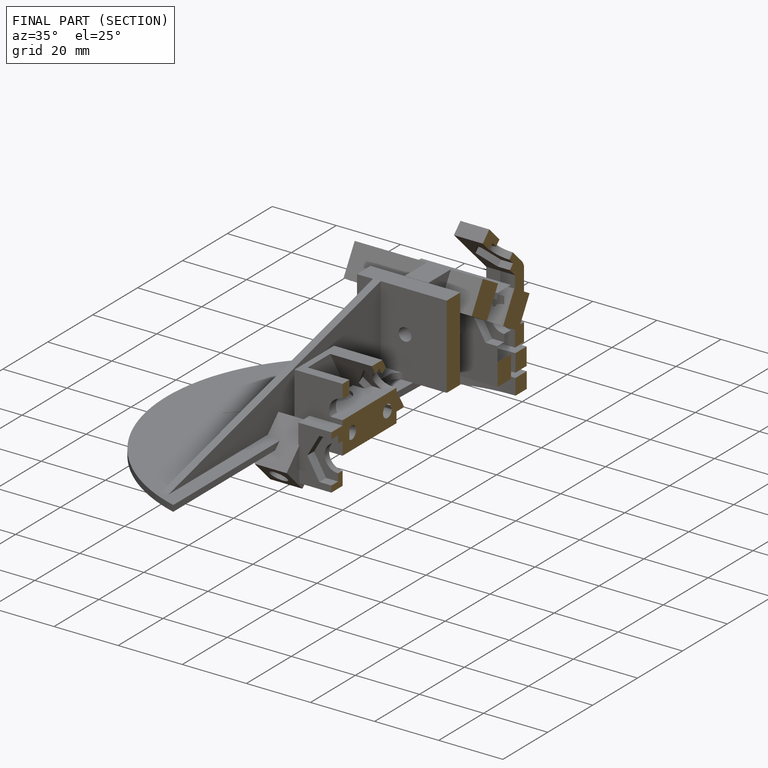
[diagram: finished part — half-section view (interior)]
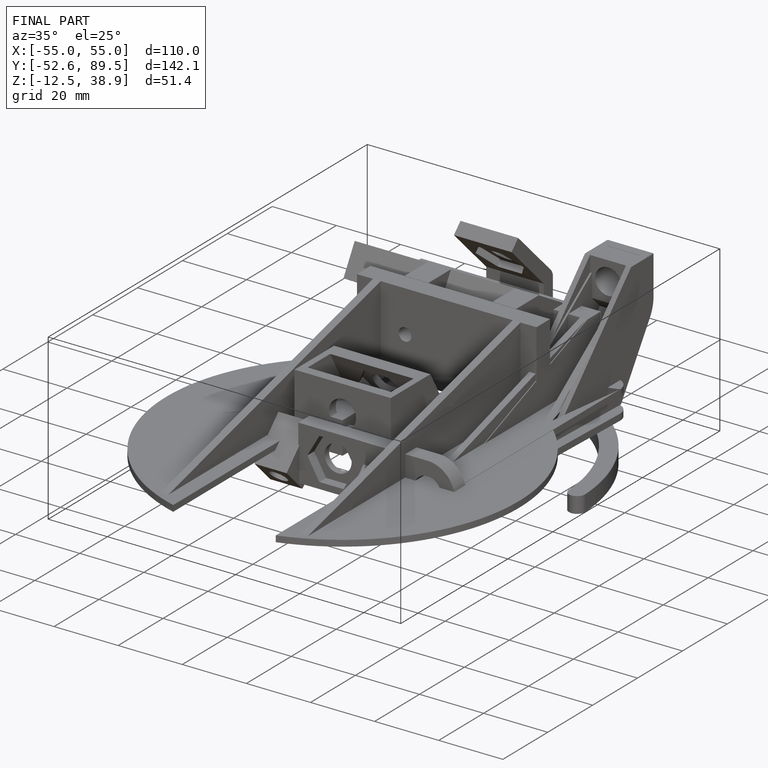
[diagram: finished part — iso view with bounding-box wireframe]
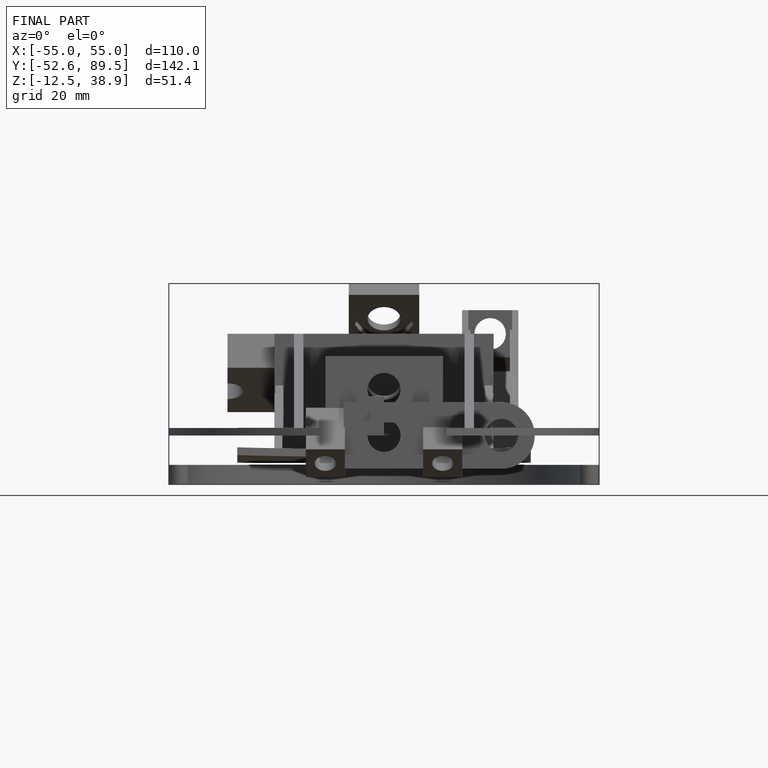
[diagram: finished part — front view with bounding-box wireframe]
